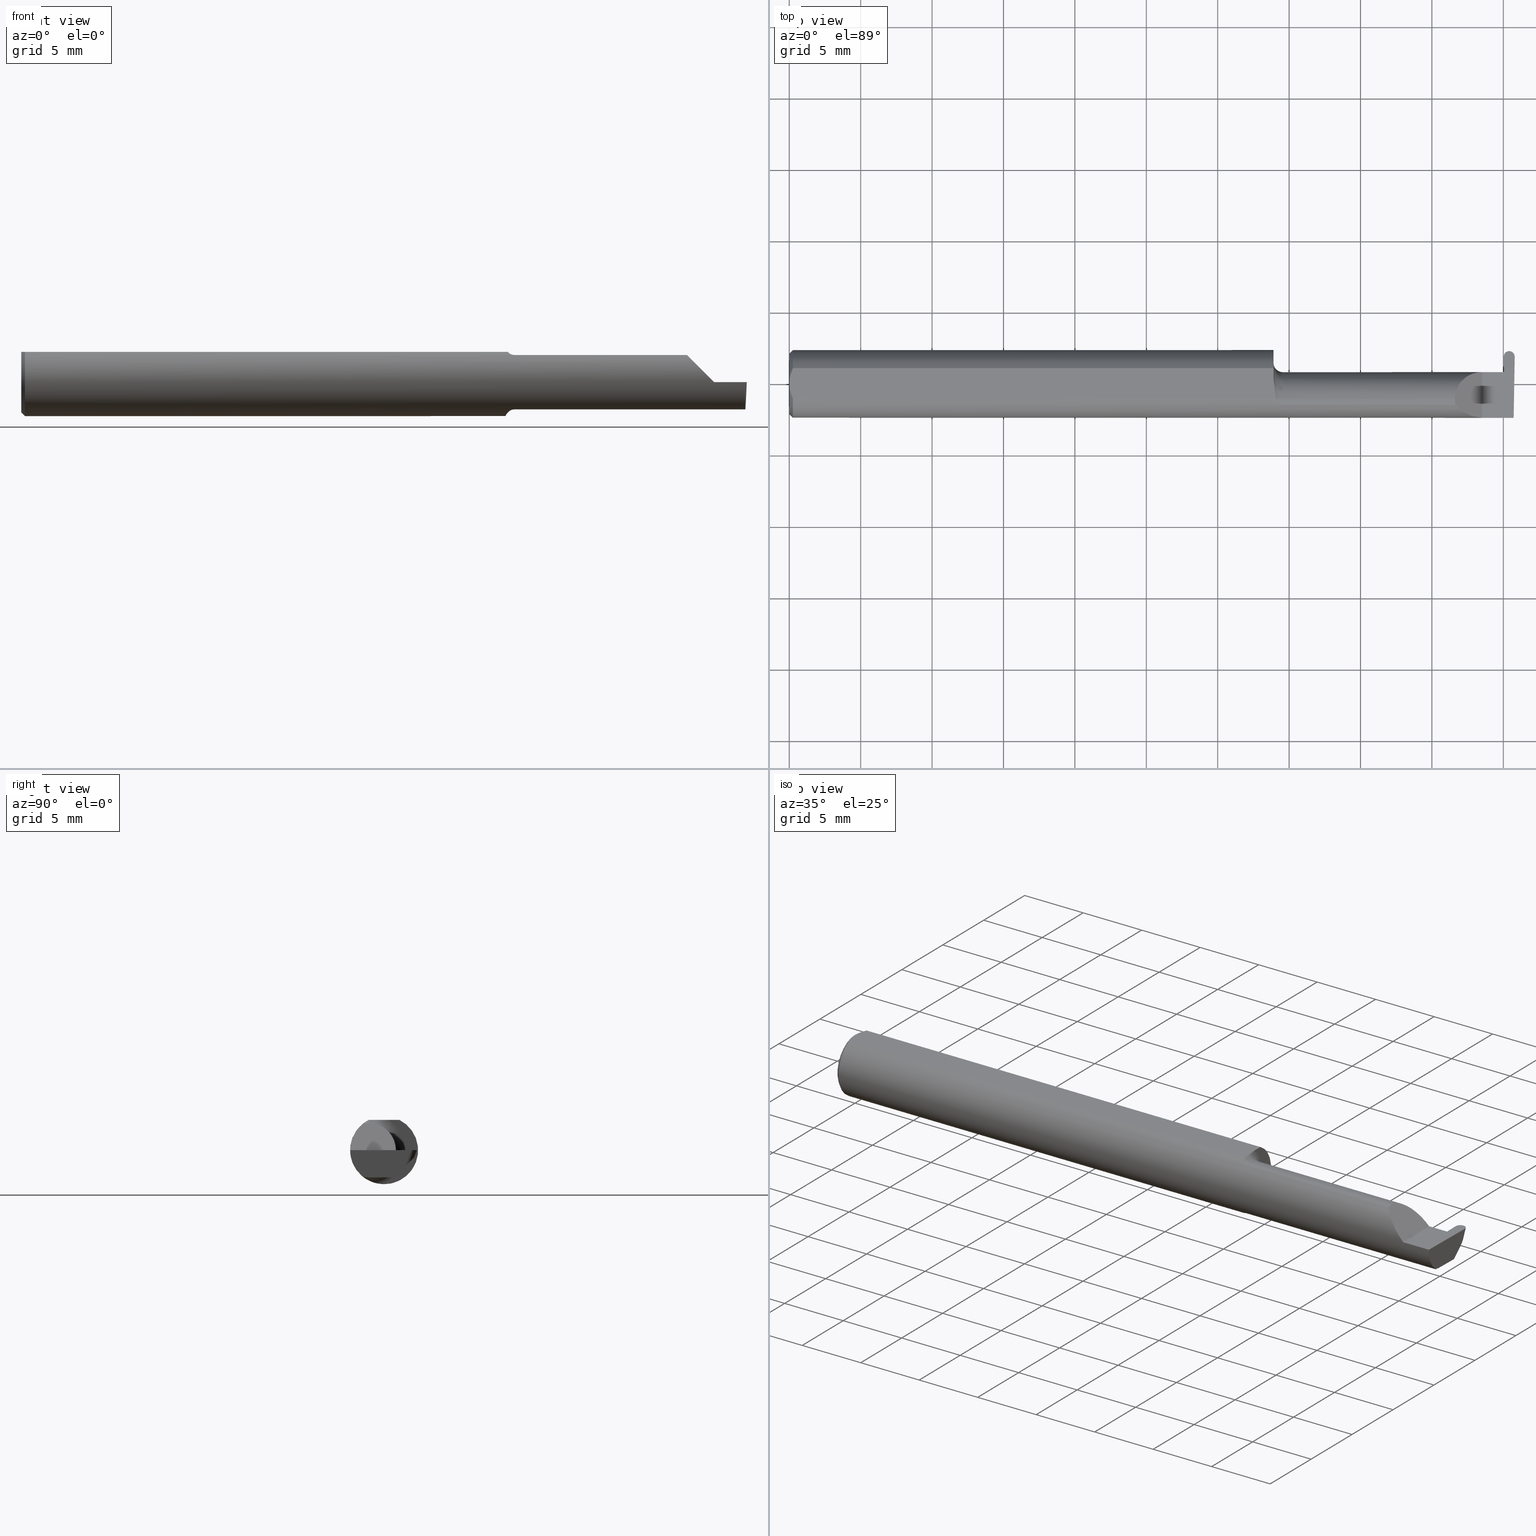
[diagram: canonical four-view strip — front | top / right | iso, engineering-drawing reading convention]
A machine part, canonical four-view strip (front | top / right | iso — engineering-drawing reading convention). The complete STEP part file that produces these views, byte-faithful:
ISO-10303-21;
HEADER;
FILE_DESCRIPTION (( 'STEP AP203' ),
    '1' );
FILE_NAME ('221825-GFR030K-10.STEP',
    '2024-06-17T19:36:38',
    ( '' ),
    ( '' ),
    'SwSTEP 2.0',
    'SolidWorks 2022',
    '' );
FILE_SCHEMA (( 'CONFIG_CONTROL_DESIGN' ));
ENDSEC;

DATA;
#1 = EDGE_CURVE ( 'NONE', #400, #269, #553, .T. ) ;
#2 = CARTESIAN_POINT ( 'NONE',  ( 1.351446782524423629, -0.05558685324519221926, -0.07531605361338924998 ) ) ;
#3 = DIRECTION ( 'NONE',  ( 0.000000000000000000, 0.000000000000000000, 1.000000000000000000 ) ) ;
#4 = DIRECTION ( 'NONE',  ( 0.000000000000000000, 0.000000000000000000, -1.000000000000000000 ) ) ;
#5 = EDGE_CURVE ( 'NONE', #344, #516, #43, .T. ) ;
#6 = CARTESIAN_POINT ( 'NONE',  ( 1.334999999999999742, 0.09360000000000005815, 0.08359999999999991049 ) ) ;
#7 = VECTOR ( 'NONE', #655, 39.37007874015748143 ) ;
#8 = CARTESIAN_POINT ( 'NONE',  ( 1.341129652885479251, -0.04209513035970115918, 0.08359999999999991049 ) ) ;
#9 = CARTESIAN_POINT ( 'NONE',  ( 1.351469028275930961, -0.05559939362423892834, 0.07530665289274073027 ) ) ;
#10 = EDGE_CURVE ( 'NONE', #59, #428, #534, .T. ) ;
#11 = CARTESIAN_POINT ( 'NONE',  ( 1.334999999999999742, -0.006757276995305315156, -0.09335576686851604356 ) ) ;
#12 = CARTESIAN_POINT ( 'NONE',  ( 1.357655343791670299, -0.05810704225352112534, 0.07337936794867830348 ) ) ;
#13 = VECTOR ( 'NONE', #454, 39.37007874015748143 ) ;
#14 = CARTESIAN_POINT ( 'NONE',  ( 1.836620632051321200, -0.05810704225352100044, 0.07337936794867835899 ) ) ;
#15 = CARTESIAN_POINT ( 'NONE',  ( 1.984733980000000120, 0.08346613280634004872, -0.01901843274260210312 ) ) ;
#16 = CARTESIAN_POINT ( 'NONE',  ( 1.334999999999999742, -0.04260000000000003367, 0.000000000000000000 ) ) ;
#17 = DIRECTION ( 'NONE',  ( 0.000000000000000000, 0.000000000000000000, 1.000000000000000000 ) ) ;
#18 = LOCAL_TIME ( 12, 36, 38.00000000000000000, #268 ) ;
#19 = CARTESIAN_POINT ( 'NONE',  ( 1.341356684838558522, -0.04260000000000006143, 0.08334386600104411180 ) ) ;
#20 = DIRECTION ( 'NONE',  ( 0.000000000000000000, 0.000000000000000000, 1.000000000000000000 ) ) ;
#21 = ORIENTED_EDGE ( 'NONE', *, *, #124, .T. ) ;
#22 = EDGE_CURVE ( 'NONE', #113, #229, #763, .T. ) ;
#23 = DIRECTION ( 'NONE',  ( -1.000000000000000000, -0.000000000000000000, -0.000000000000000000 ) ) ;
#24 =( NAMED_UNIT ( * ) SI_UNIT ( $, .STERADIAN. ) SOLID_ANGLE_UNIT ( ) );
#25 = EDGE_CURVE ( 'NONE', #802, #170, #506, .T. ) ;
#26 = CARTESIAN_POINT ( 'NONE',  ( 1.359999999999999654, -0.04260000000000002673, -0.07500000000000002498 ) ) ;
#27 = AXIS2_PLACEMENT_3D ( 'NONE', #419, #58, #3 ) ;
#28 = CARTESIAN_POINT ( 'NONE',  ( 1.910000000000000142, 0.03239999999999997743, 8.143901214329935029E-17 ) ) ;
#29 = APPROVAL_STATUS ( 'not_yet_approved' ) ;
#30 = VECTOR ( 'NONE', #656, 39.37007874015748143 ) ;
#31 = ADVANCED_FACE ( 'NONE', ( #405 ), #196, .T. ) ;
#32 = VERTEX_POINT ( 'NONE', #345 ) ;
#33 = CARTESIAN_POINT ( 'NONE',  ( 1.995346537079453419, -0.08092595952420826577, -0.05530971394246244482 ) ) ;
#34 = FACE_OUTER_BOUND ( 'NONE', #224, .T. ) ;
#35 = DATE_AND_TIME ( #650, #468 ) ;
#36 = CARTESIAN_POINT ( 'NONE',  ( 1.964077367699730736, 0.03227820251299121090, -0.003487823687206109430 ) ) ;
#37 = CARTESIAN_POINT ( 'NONE',  ( 1.334999999999999742, -0.04260000000000003367, 0.07500000000000002498 ) ) ;
#38 = CARTESIAN_POINT ( 'NONE',  ( 1.834999999999999298, 0.001333982822017827988, 0.07500000000000002498 ) ) ;
#39 = ORIENTED_EDGE ( 'NONE', *, *, #222, .T. ) ;
#40 = CARTESIAN_POINT ( 'NONE',  ( 1.998141998353699433, 0.05785528259492388886, -0.04462928295401853013 ) ) ;
#41 = EDGE_CURVE ( 'NONE', #269, #400, #783, .T. ) ;
#42 = APPROVAL ( #623, 'UNSPECIFIED' ) ;
#43 = LINE ( 'NONE', #464, #63 ) ;
#44 = CARTESIAN_POINT ( 'NONE',  ( 1.999984260029693539, 0.07409901316683065176, 0.000000000000000000 ) ) ;
#45 = ORIENTED_EDGE ( 'NONE', *, *, #640, .T. ) ;
#46 = ORIENTED_EDGE ( 'NONE', *, *, #86, .T. ) ;
#47 = VECTOR ( 'NONE', #733, 39.37007874015748143 ) ;
#48 = ORIENTED_EDGE ( 'NONE', *, *, #313, .F. ) ;
#49 = CARTESIAN_POINT ( 'NONE',  ( 1.836620632051321200, -0.05810704225352100044, 0.07337936794867835899 ) ) ;
#50 = ORIENTED_EDGE ( 'NONE', *, *, #539, .T. ) ;
#51 = ORIENTED_EDGE ( 'NONE', *, *, #88, .F. ) ;
#52 = ORIENTED_EDGE ( 'NONE', *, *, #222, .F. ) ;
#53 = LINE ( 'NONE', #465, #47 ) ;
#54 = CARTESIAN_POINT ( 'NONE',  ( 0.009999999999999877043, 0.04209513035969864037, 0.08359999999999988274 ) ) ;
#55 = EDGE_LOOP ( 'NONE', ( #297, #349, #308, #121 ) ) ;
#56 = ORIENTED_EDGE ( 'NONE', *, *, #435, .T. ) ;
#57 = DIRECTION ( 'NONE',  ( 0.000000000000000000, 0.000000000000000000, -1.000000000000000000 ) ) ;
#58 = DIRECTION ( 'NONE',  ( -0.000000000000000000, 1.000000000000000000, 1.224646799147353207E-16 ) ) ;
#59 = VERTEX_POINT ( 'NONE', #799 ) ;
#60 = EDGE_LOOP ( 'NONE', ( #68, #302, #181, #420 ) ) ;
#61 = PLANE ( 'NONE',  #272 ) ;
#62 = LINE ( 'NONE', #543, #504 ) ;
#63 = VECTOR ( 'NONE', #422, 39.37007874015748143 ) ;
#64 = ORIENTED_EDGE ( 'NONE', *, *, #762, .F. ) ;
#65 = B_SPLINE_CURVE_WITH_KNOTS ( 'NONE', 3,
 ( #508, #750, #253, #495, #9, #137, #12, #203 ),
 .UNSPECIFIED., .F., .F.,
 ( 4, 2, 2, 4 ),
 ( 1.584523690453658475E-05, 0.0003656721978374786498, 0.0005405856783039496858, 0.0007154991587704208301 ),
 .UNSPECIFIED. ) ;
#66 = DIRECTION ( 'NONE',  ( 0.000000000000000000, 0.000000000000000000, 1.000000000000000000 ) ) ;
#67 = DIRECTION ( 'NONE',  ( 1.000000000000000000, 0.000000000000000000, 0.000000000000000000 ) ) ;
#68 = ORIENTED_EDGE ( 'NONE', *, *, #230, .F. ) ;
#69 = DIRECTION ( 'NONE',  ( -0.001239419280281404273, 0.9999992319196288060, 0.000000000000000000 ) ) ;
#70 = CARTESIAN_POINT ( 'NONE',  ( 1.976063894922527542, 0.08291310012426171550, -0.01957146542468042941 ) ) ;
#71 = FACE_OUTER_BOUND ( 'NONE', #719, .T. ) ;
#72 = AXIS2_PLACEMENT_3D ( 'NONE', #594, #642, #388 ) ;
#73 = EDGE_CURVE ( 'NONE', #290, #727, #691, .T. ) ;
#74 = CARTESIAN_POINT ( 'NONE',  ( 1.984733980000000120, 0.08346613280634004872, -0.01901843274260210312 ) ) ;
#75 = CARTESIAN_POINT ( 'NONE',  ( 1.969483699970306922, 0.07409901316683065176, 0.000000000000000000 ) ) ;
#76 = DIRECTION ( 'NONE',  ( -1.000000000000000000, 0.000000000000000000, 1.224646799147358877E-16 ) ) ;
#77 = PRODUCT_RELATED_PRODUCT_CATEGORY ( 'detail', '', ( #603 ) ) ;
#78 = CARTESIAN_POINT ( 'NONE',  ( 0.000000000000000000, 0.000000000000000000, 0.000000000000000000 ) ) ;
#79 = DIRECTION ( 'NONE',  ( -1.000000000000000000, -0.000000000000000000, -0.000000000000000000 ) ) ;
#80 = PRODUCT_DEFINITION ( 'UNKNOWN', '', #801, #523 ) ;
#81 = CARTESIAN_POINT ( 'NONE',  ( 1.998141998353699433, 0.05785528259492388886, -0.04462928295401853013 ) ) ;
#82 = DIRECTION ( 'NONE',  ( 0.000000000000000000, 0.000000000000000000, -1.000000000000000000 ) ) ;
#83 = VECTOR ( 'NONE', #79, 39.37007874015748143 ) ;
#84 = CYLINDRICAL_SURFACE ( 'NONE', #785, 0.09360000000000001652 ) ;
#85 = ORGANIZATION ( 'UNSPECIFIED', 'UNSPECIFIED', '' ) ;
#86 = EDGE_CURVE ( 'NONE', #548, #541, #744, .T. ) ;
#87 = CARTESIAN_POINT ( 'NONE',  ( 1.995113740419715231, -0.05810704225352111146, -0.07337936794867830348 ) ) ;
#88 = EDGE_CURVE ( 'NONE', #423, #241, #635, .T. ) ;
#89 = DIRECTION ( 'NONE',  ( -0.02596452850600439177, 0.7068683906002057871, 0.7068683906002134476 ) ) ;
#90 = DATE_AND_TIME ( #598, #18 ) ;
#91 = AXIS2_PLACEMENT_3D ( 'NONE', #512, #524, #341 ) ;
#92 = VERTEX_POINT ( 'NONE', #695 ) ;
#93 = CARTESIAN_POINT ( 'NONE',  ( 1.995327814509989528, -0.04259999999999980469, -0.07500000000000002498 ) ) ;
#94 = CARTESIAN_POINT ( 'NONE',  ( 2.115884466375952400, -0.04259999999999980469, -0.07500000000000002498 ) ) ;
#95 = ADVANCED_FACE ( 'NONE', ( #258 ), #315, .F. ) ;
#96 = PERSON_AND_ORGANIZATION ( #243, #85 ) ;
#97 = CARTESIAN_POINT ( 'NONE',  ( 1.984733980000000120, 0.08346613280634004872, -0.01901843274260210312 ) ) ;
#98 = VECTOR ( 'NONE', #327, 39.37007874015748854 ) ;
#99 = CARTESIAN_POINT ( 'NONE',  ( 1.910000000000000142, 0.03239999999999997743, 8.143901214329935029E-17 ) ) ;
#100 = PERSON_AND_ORGANIZATION_ROLE ( 'design_owner' ) ;
#101 = ORIENTED_EDGE ( 'NONE', *, *, #22, .T. ) ;
#102 =( LENGTH_UNIT ( ) NAMED_UNIT ( * ) SI_UNIT ( $, .METRE. ) );
#103 = ORIENTED_EDGE ( 'NONE', *, *, #252, .T. ) ;
#104 = CARTESIAN_POINT ( 'NONE',  ( 0.000000000000000000, 0.000000000000000000, 0.000000000000000000 ) ) ;
#105 = CARTESIAN_POINT ( 'NONE',  ( 1.359999999999999654, -0.04260000000000002673, 0.000000000000000000 ) ) ;
#106 = CARTESIAN_POINT ( 'NONE',  ( 1.910000000000000142, -0.2500000000000000555, 1.102182119232621301E-17 ) ) ;
#107 = EDGE_LOOP ( 'NONE', ( #607, #242, #355, #676, #648, #348, #738 ) ) ;
#108 = PERSON_AND_ORGANIZATION ( #243, #85 ) ;
#109 = ORIENTED_EDGE ( 'NONE', *, *, #497, .F. ) ;
#110 = AXIS2_PLACEMENT_3D ( 'NONE', #440, #567, #4 ) ;
#111 = ORIENTED_EDGE ( 'NONE', *, *, #394, .T. ) ;
#112 = CARTESIAN_POINT ( 'NONE',  ( 1.359999999999999654, -0.04260000000000003367, 0.07500000000000002498 ) ) ;
#113 = VERTEX_POINT ( 'NONE', #11 ) ;
#114 = ORIENTED_EDGE ( 'NONE', *, *, #375, .F. ) ;
#115 = VECTOR ( 'NONE', #542, 39.37007874015748143 ) ;
#116 = EDGE_CURVE ( 'NONE', #727, #552, #493, .T. ) ;
#117 = VERTEX_POINT ( 'NONE', #697 ) ;
#118 = EDGE_CURVE ( 'NONE', #614, #285, #324, .T. ) ;
#119 = ORIENTED_EDGE ( 'NONE', *, *, #178, .F. ) ;
#120 = B_SPLINE_CURVE_WITH_KNOTS ( 'NONE', 3,
 ( #461, #36, #336, #271 ),
 .UNSPECIFIED., .F., .F.,
 ( 4, 4 ),
 ( 0.000000000000000000, 1.000000000000000000 ),
 .UNSPECIFIED. ) ;
#121 = ORIENTED_EDGE ( 'NONE', *, *, #687, .F. ) ;
#122 = CARTESIAN_POINT ( 'NONE',  ( -3.937007874047004035E-05, 0.02748456554894273055, -0.07500000000000002498 ) ) ;
#123 = EDGE_LOOP ( 'NONE', ( #228, #613, #787, #537, #343 ) ) ;
#124 = EDGE_CURVE ( 'NONE', #551, #117, #291, .T. ) ;
#125 = EDGE_LOOP ( 'NONE', ( #745, #414, #797, #192 ) ) ;
#126 = EDGE_LOOP ( 'NONE', ( #179, #395, #768, #544, #335, #796, #357, #114, #235 ) ) ;
#127 = DIRECTION ( 'NONE',  ( 1.000000000000000000, 0.000000000000000000, -0.000000000000000000 ) ) ;
#128 = DATE_AND_TIME ( #182, #339 ) ;
#129 = ORIENTED_EDGE ( 'NONE', *, *, #118, .F. ) ;
#130 = CARTESIAN_POINT ( 'NONE',  ( 1.343086474849918721, -0.04638796853538170589, -0.08140770120152260314 ) ) ;
#131 = CC_DESIGN_APPROVAL ( #42, ( #669 ) ) ;
#132 = CARTESIAN_POINT ( 'NONE',  ( 1.970211558952576159, 0.03239999999999999825, 0.000000000000000000 ) ) ;
#133 = ORIENTED_EDGE ( 'NONE', *, *, #694, .T. ) ;
#134 = CARTESIAN_POINT ( 'NONE',  ( 1.345264545693808600, -0.04993027844100256935, -0.07924826417278518775 ) ) ;
#135 = AXIS2_PLACEMENT_3D ( 'NONE', #16, #753, #138 ) ;
#136 = PLANE ( 'NONE',  #528 ) ;
#137 = CARTESIAN_POINT ( 'NONE',  ( 1.355389214148234434, -0.05750155061631028602, 0.07386444488392708563 ) ) ;
#138 = DIRECTION ( 'NONE',  ( 0.000000000000000000, 0.000000000000000000, 1.000000000000000000 ) ) ;
#139 = LINE ( 'NONE', #382, #98 ) ;
#140 = CONICAL_SURFACE ( 'NONE', #442, 0.08360000000000017417, 0.7853981633974466137 ) ;
#141 = DIRECTION ( 'NONE',  ( -1.224646799147358877E-16, 0.000000000000000000, -1.000000000000000000 ) ) ;
#142 = CC_DESIGN_SECURITY_CLASSIFICATION ( #669, ( #801 ) ) ;
#143 = DIRECTION ( 'NONE',  ( 0.03547001781079536092, 0.000000000000000000, -0.9993707409347653003 ) ) ;
#144 = B_SPLINE_CURVE_WITH_KNOTS ( 'NONE', 3,
 ( #378, #374, #148, #702 ),
 .UNSPECIFIED., .F., .F.,
 ( 4, 4 ),
 ( 0.0006429768761302129395, 0.001744210492668866585 ),
 .UNSPECIFIED. ) ;
#145 = PLANE ( 'NONE',  #110 ) ;
#146 = DIRECTION ( 'NONE',  ( 1.000000000000000000, 0.000000000000000000, 0.000000000000000000 ) ) ;
#147 = CARTESIAN_POINT ( 'NONE',  ( 1.984939206054983529, 0.09039999999999999425, 0.000000000000000000 ) ) ;
#148 = CARTESIAN_POINT ( 'NONE',  ( -2.417970307672167282E-16, -0.01462709520273677843, 0.08359999999999991049 ) ) ;
#149 = ADVANCED_FACE ( 'NONE', ( #251 ), #496, .F. ) ;
#150 = ADVANCED_FACE ( 'NONE', ( #684 ), #145, .T. ) ;
#151 = CARTESIAN_POINT ( 'NONE',  ( 1.995113740419715231, -0.05810704225352111146, -0.07337936794867830348 ) ) ;
#152 = CIRCLE ( 'NONE', #351, 0.07500000000000002498 ) ;
#153 = DIRECTION ( 'NONE',  ( 1.000000000000000000, -0.000000000000000000, -0.000000000000000000 ) ) ;
#154 = PERSON_AND_ORGANIZATION_ROLE ( 'classification_officer' ) ;
#155 = ORIENTED_EDGE ( 'NONE', *, *, #10, .F. ) ;
#156 = APPLICATION_CONTEXT ( 'configuration controlled 3d designs of mechanical parts and assemblies' ) ;
#157 = ADVANCED_FACE ( 'NONE', ( #756 ), #626, .F. ) ;
#158 = CARTESIAN_POINT ( 'NONE',  ( 1.995236768857725718, -0.04781600192481513800, -0.07500000000000002498 ) ) ;
#159 = ADVANCED_FACE ( 'NONE', ( #248 ), #136, .F. ) ;
#160 = CARTESIAN_POINT ( 'NONE',  ( 1.995327814509989528, -0.04259999999999980469, -0.07500000000000002498 ) ) ;
#161 = ORIENTED_EDGE ( 'NONE', *, *, #398, .T. ) ;
#162 = CARTESIAN_POINT ( 'NONE',  ( 1.972879577618598335, 0.02748456554894274442, -0.07499999999999999722 ) ) ;
#163 = LINE ( 'NONE', #106, #301 ) ;
#164 = AXIS2_PLACEMENT_3D ( 'NONE', #171, #784, #231 ) ;
#165 = DIRECTION ( 'NONE',  ( 0.000000000000000000, 0.000000000000000000, -1.000000000000000000 ) ) ;
#166 = DIRECTION ( 'NONE',  ( 0.000000000000000000, 0.000000000000000000, 1.000000000000000000 ) ) ;
#167 = LINE ( 'NONE', #459, #380 ) ;
#168 = ORIENTED_EDGE ( 'NONE', *, *, #230, .T. ) ;
#169 = SECURITY_CLASSIFICATION_LEVEL ( 'unclassified' ) ;
#170 = VERTEX_POINT ( 'NONE', #574 ) ;
#171 = CARTESIAN_POINT ( 'NONE',  ( 0.009999999999999877043, 0.000000000000000000, 0.000000000000000000 ) ) ;
#172 = LINE ( 'NONE', #37, #7 ) ;
#173 =( BOUNDED_CURVE ( )  B_SPLINE_CURVE ( 3, ( #44, #342, #287, #789 ),
 .UNSPECIFIED., .F., .T. ) 
 B_SPLINE_CURVE_WITH_KNOTS ( ( 4, 4 ),
 ( 1.672436806532648257, 3.247686724355375087 ),
 .UNSPECIFIED. ) 
 CURVE ( )  GEOMETRIC_REPRESENTATION_ITEM ( )  RATIONAL_B_SPLINE_CURVE ( ( 1.000000000000000000, 0.8036869647627065127, 0.8036869647627065127, 1.000000000000000000 ) ) 
 REPRESENTATION_ITEM ( '' )  );
#174 = EDGE_LOOP ( 'NONE', ( #52, #347, #485, #119, #482 ) ) ;
#175 = ADVANCED_FACE ( 'NONE', ( #260 ), #202, .T. ) ;
#176 = ORIENTED_EDGE ( 'NONE', *, *, #369, .F. ) ;
#177 = AXIS2_PLACEMENT_3D ( 'NONE', #433, #146, #447 ) ;
#178 = EDGE_CURVE ( 'NONE', #92, #290, #446, .T. ) ;
#179 = ORIENTED_EDGE ( 'NONE', *, *, #515, .F. ) ;
#180 = CARTESIAN_POINT ( 'NONE',  ( 1.835542168554753717, -0.05300374992736055918, 0.07445783144524575903 ) ) ;
#181 = ORIENTED_EDGE ( 'NONE', *, *, #322, .T. ) ;
#182 = CALENDAR_DATE ( 2024, 17, 6 ) ;
#183 = VECTOR ( 'NONE', #743, 39.37007874015748143 ) ;
#184 = ORIENTED_EDGE ( 'NONE', *, *, #317, .T. ) ;
#185 = AXIS2_PLACEMENT_3D ( 'NONE', #625, #66, #127 ) ;
#186 = EDGE_CURVE ( 'NONE', #538, #725, #765, .T. ) ;
#187 = DIRECTION ( 'NONE',  ( -1.000000000000000000, -0.000000000000000000, -0.000000000000000000 ) ) ;
#188 = ORIENTED_EDGE ( 'NONE', *, *, #539, .F. ) ;
#189 = ORIENTED_EDGE ( 'NONE', *, *, #394, .F. ) ;
#190 = DIRECTION ( 'NONE',  ( -1.000000000000000000, -0.000000000000000000, -0.000000000000000000 ) ) ;
#191 = CARTESIAN_POINT ( 'NONE',  ( 1.972966441847108454, -0.04260000000000003367, -0.07500000000000002498 ) ) ;
#192 = ORIENTED_EDGE ( 'NONE', *, *, #450, .F. ) ;
#193 = VERTEX_POINT ( 'NONE', #747 ) ;
#194 = CYLINDRICAL_SURFACE ( 'NONE', #387, 0.01524999999999999793 ) ;
#195 = ORIENTED_EDGE ( 'NONE', *, *, #354, .F. ) ;
#196 = CONICAL_SURFACE ( 'NONE', #641, 0.08360000000000017417, 0.7853981633974466137 ) ;
#197 = CARTESIAN_POINT ( 'NONE',  ( 1.981547166899399137, 0.1023591649057441905, 0.07744555263655339417 ) ) ;
#198 = APPROVAL_PERSON_ORGANIZATION ( #714, #701, #460 ) ;
#199 = DIRECTION ( 'NONE',  ( 1.000000000000000000, 0.000000000000000000, 0.000000000000000000 ) ) ;
#200 = CARTESIAN_POINT ( 'NONE',  ( 1.969470285088788852, 0.07486755121428030624, 0.000000000000000000 ) ) ;
#201 = CARTESIAN_POINT ( 'NONE',  ( 0.009999999999999877043, 0.04209513035969864037, 0.08359999999999988274 ) ) ;
#202 = CYLINDRICAL_SURFACE ( 'NONE', #135, 0.07500000000000002498 ) ;
#203 = CARTESIAN_POINT ( 'NONE',  ( 1.359999999999999654, -0.05810704225352111146, 0.07337936794867830348 ) ) ;
#204 = VECTOR ( 'NONE', #501, 39.37007874015748143 ) ;
#205 = DIRECTION ( 'NONE',  ( 0.03876062227022340073, -0.3417631236437465025, -0.9389864650134709390 ) ) ;
#206 = DIRECTION ( 'NONE',  ( 0.000000000000000000, 0.000000000000000000, -1.000000000000000000 ) ) ;
#207 = CLOSED_SHELL ( 'NONE', ( #427, #263, #584, #578, #667, #580, #755, #511, #95, #509, #31, #283, #175, #392, #150, #723, #149, #157, #159, #296, #659, #726, #457 ) ) ;
#208 = CARTESIAN_POINT ( 'NONE',  ( 1.334999999999999742, -0.04260000000000002673, -0.07500000000000002498 ) ) ;
#209 = FACE_OUTER_BOUND ( 'NONE', #352, .T. ) ;
#210 = CARTESIAN_POINT ( 'NONE',  ( 1.984733980000000120, 0.08688529186597597487, -0.009656581234204470940 ) ) ;
#211 = PERSON_AND_ORGANIZATION_ROLE ( 'design_supplier' ) ;
#212 = CARTESIAN_POINT ( 'NONE',  ( 1.970211558952576159, 0.03239999999999999825, 0.000000000000000000 ) ) ;
#213 = VECTOR ( 'NONE', #415, 39.37007874015748143 ) ;
#214 = CARTESIAN_POINT ( 'NONE',  ( 1.970211558952576159, 0.03239999999999999825, 0.000000000000000000 ) ) ;
#215 = CARTESIAN_POINT ( 'NONE',  ( 1.359999999999999654, -0.05810704225352108371, -0.07337936794867830348 ) ) ;
#216 = DATE_AND_TIME ( #333, #634 ) ;
#217 = LINE ( 'NONE', #264, #434 ) ;
#218 = DIRECTION ( 'NONE',  ( -0.000000000000000000, 1.000000000000000000, -0.000000000000000000 ) ) ;
#219 = DIRECTION ( 'NONE',  ( -1.000000000000000000, -0.000000000000000000, -0.000000000000000000 ) ) ;
#220 = ORIENTED_EDGE ( 'NONE', *, *, #612, .T. ) ;
#221 = AXIS2_PLACEMENT_3D ( 'NONE', #654, #190, #57 ) ;
#222 = EDGE_CURVE ( 'NONE', #552, #533, #236, .T. ) ;
#223 = ORIENTED_EDGE ( 'NONE', *, *, #687, .T. ) ;
#224 = EDGE_LOOP ( 'NONE', ( #805, #161, #786, #56 ) ) ;
#225 = AXIS2_PLACEMENT_3D ( 'NONE', #652, #703, #82 ) ;
#226 = EDGE_CURVE ( 'NONE', #193, #59, #438, .T. ) ;
#227 = CARTESIAN_POINT ( 'NONE',  ( 1.338953896433695556, -0.03733827064844359028, -0.08603332211978829969 ) ) ;
#228 = ORIENTED_EDGE ( 'NONE', *, *, #688, .F. ) ;
#229 = VERTEX_POINT ( 'NONE', #373 ) ;
#230 = EDGE_CURVE ( 'NONE', #725, #487, #385, .T. ) ;
#231 = DIRECTION ( 'NONE',  ( 0.000000000000000000, 0.000000000000000000, -1.000000000000000000 ) ) ;
#232 = CARTESIAN_POINT ( 'NONE',  ( 1.664733979999999613, -0.05810704225352111146, 0.07337936794867830348 ) ) ;
#233 = ORIENTED_EDGE ( 'NONE', *, *, #439, .T. ) ;
#234 = VECTOR ( 'NONE', #199, 39.37007874015748143 ) ;
#235 = ORIENTED_EDGE ( 'NONE', *, *, #432, .T. ) ;
#236 =( BOUNDED_CURVE ( )  B_SPLINE_CURVE ( 3, ( #629, #377, #70, #74 ),
 .UNSPECIFIED., .F., .T. ) 
 B_SPLINE_CURVE_WITH_KNOTS ( ( 4, 4 ),
 ( 4.726007796544804407, 6.263244654271833411 ),
 .UNSPECIFIED. ) 
 CURVE ( )  GEOMETRIC_REPRESENTATION_ITEM ( )  RATIONAL_B_SPLINE_CURVE ( ( 1.000000000000000000, 0.8125811630039301292, 0.8125811630039301292, 1.000000000000000000 ) ) 
 REPRESENTATION_ITEM ( '' )  );
#237 = APPROVAL_PERSON_ORGANIZATION ( #513, #445, #467 ) ;
#238 = DIRECTION ( 'NONE',  ( 0.000000000000000000, 0.000000000000000000, -1.000000000000000000 ) ) ;
#239 = LINE ( 'NONE', #232, #213 ) ;
#240 = CARTESIAN_POINT ( 'NONE',  ( 1.334999999999999742, -0.006757276995305315156, -0.09335576686851604356 ) ) ;
#241 = VERTEX_POINT ( 'NONE', #26 ) ;
#242 = ORIENTED_EDGE ( 'NONE', *, *, #615, .T. ) ;
#243 = PERSON ( 'UNSPECIFIED', 'UNSPECIFIED', 'UNSPECIFIED', ('UNSPECIFIED'), ('UNSPECIFIED'), ('UNSPECIFIED') ) ;
#244 = FACE_OUTER_BOUND ( 'NONE', #793, .T. ) ;
#245 = CARTESIAN_POINT ( 'NONE',  ( 1.334999999999999520, -0.01308640439514279288, -0.09289765197734374536 ) ) ;
#246 = VERTEX_POINT ( 'NONE', #147 ) ;
#247 = FACE_OUTER_BOUND ( 'NONE', #174, .T. ) ;
#248 = FACE_OUTER_BOUND ( 'NONE', #359, .T. ) ;
#249 = CIRCLE ( 'NONE', #72, 0.09999999999999996392 ) ;
#250 = PLANE ( 'NONE',  #185 ) ;
#251 = FACE_OUTER_BOUND ( 'NONE', #475, .T. ) ;
#252 = EDGE_CURVE ( 'NONE', #229, #627, #736, .T. ) ;
#253 = CARTESIAN_POINT ( 'NONE',  ( 1.345259025420519672, -0.04992838138009418614, 0.07925011723318654833 ) ) ;
#254 = EDGE_CURVE ( 'NONE', #246, #92, #217, .T. ) ;
#255 = DIRECTION ( 'NONE',  ( 0.03490480639812536257, 0.000000000000000000, -0.9993906415863165194 ) ) ;
#256 = FACE_OUTER_BOUND ( 'NONE', #123, .T. ) ;
#257 = EDGE_CURVE ( 'NONE', #541, #487, #458, .T. ) ;
#258 = FACE_OUTER_BOUND ( 'NONE', #126, .T. ) ;
#259 = CARTESIAN_POINT ( 'NONE',  ( 1.967284513080595598, 0.1350099130299695083, 0.03252534748102791501 ) ) ;
#260 = FACE_OUTER_BOUND ( 'NONE', #365, .T. ) ;
#261 = DIRECTION ( 'NONE',  ( -0.03876062227022336604, -0.3417631236437465581, -0.9389864650134709390 ) ) ;
#262 = AXIS2_PLACEMENT_3D ( 'NONE', #561, #383, #326 ) ;
#263 = ADVANCED_FACE ( 'NONE', ( #638 ), #710, .F. ) ;
#264 = CARTESIAN_POINT ( 'NONE',  ( 1.981957002351928621, 0.06410508538814198298, -0.07224468414256722537 ) ) ;
#265 = APPLICATION_PROTOCOL_DEFINITION ( 'international standard', 'config_control_design', 1994, #156 ) ;
#266 = CARTESIAN_POINT ( 'NONE',  ( 1.984733980000000120, 0.08517697538907439969, -0.01433940395293248522 ) ) ;
#267 = CARTESIAN_POINT ( 'NONE',  ( 1.971325961646301028, 0.05785528259492385417, -0.04462928295401856482 ) ) ;
#268 = COORDINATED_UNIVERSAL_TIME_OFFSET ( 8, 0, .BEHIND. ) ;
#269 = VERTEX_POINT ( 'NONE', #393 ) ;
#270 = AXIS2_PLACEMENT_3D ( 'NONE', #711, #604, #281 ) ;
#271 = CARTESIAN_POINT ( 'NONE',  ( 1.964199165186739648, 0.03239999999999999825, 0.000000000000000000 ) ) ;
#272 = AXIS2_PLACEMENT_3D ( 'NONE', #621, #521, #389 ) ;
#273 = CARTESIAN_POINT ( 'NONE',  ( 1.993404065077472032, 0.08291310012426146570, -0.01957146542468068268 ) ) ;
#274 = CARTESIAN_POINT ( 'NONE',  ( 1.996040470437265402, -0.09360000000000003040, -0.02910696448121679811 ) ) ;
#275 = CARTESIAN_POINT ( 'NONE',  ( 1.359999999999999654, -0.04260000000000003367, 0.000000000000000000 ) ) ;
#276 = ORIENTED_EDGE ( 'NONE', *, *, #608, .T. ) ;
#277 = ORIENTED_EDGE ( 'NONE', *, *, #186, .T. ) ;
#278 = EDGE_CURVE ( 'NONE', #92, #533, #376, .T. ) ;
#279 = EDGE_LOOP ( 'NONE', ( #451, #730, #478, #791, #466, #46, #740, #363 ) ) ;
#280 = FACE_OUTER_BOUND ( 'NONE', #391, .T. ) ;
#281 = DIRECTION ( 'NONE',  ( 0.000000000000000000, 0.000000000000000000, 1.000000000000000000 ) ) ;
#282 = VERTEX_POINT ( 'NONE', #402 ) ;
#283 = ADVANCED_FACE ( 'NONE', ( #646 ), #330, .F. ) ;
#284 = AXIS2_PLACEMENT_3D ( 'NONE', #483, #601, #238 ) ;
#285 = VERTEX_POINT ( 'NONE', #160 ) ;
#286 = B_SPLINE_CURVE_WITH_KNOTS ( 'NONE', 3,
 ( #790, #227, #800, #416, #245, #240 ),
 .UNSPECIFIED., .F., .F.,
 ( 4, 2, 4 ),
 ( 0.0007041963409106259328, 0.001193146413573846574, 0.001682096486237067215 ),
 .UNSPECIFIED. ) ;
#287 = CARTESIAN_POINT ( 'NONE',  ( 1.993910768437985759, 0.09039999999999999425, -1.125066701917155724E-18 ) ) ;
#288 = ORIENTED_EDGE ( 'NONE', *, *, #369, .T. ) ;
#289 = EDGE_CURVE ( 'NONE', #428, #241, #331, .T. ) ;
#290 = VERTEX_POINT ( 'NONE', #587 ) ;
#291 =( BOUNDED_CURVE ( )  B_SPLINE_CURVE ( 3, ( #502, #500, #569, #14 ),
 .UNSPECIFIED., .F., .F. ) 
 B_SPLINE_CURVE_WITH_KNOTS ( ( 4, 4 ),
 ( 4.712388980384689674, 5.613420356061720184 ),
 .UNSPECIFIED. ) 
 CURVE ( )  GEOMETRIC_REPRESENTATION_ITEM ( )  RATIONAL_B_SPLINE_CURVE ( ( 1.000000000000000000, 0.9334817841311873199, 0.9334817841311873199, 1.000000000000000000 ) ) 
 REPRESENTATION_ITEM ( '' )  );
#292 = DIRECTION ( 'NONE',  ( 0.000000000000000000, -1.000000000000000000, 0.000000000000000000 ) ) ;
#293 = LINE ( 'NONE', #122, #115 ) ;
#294 = ORIENTED_EDGE ( 'NONE', *, *, #435, .F. ) ;
#295 = APPROVAL_ROLE ( '' ) ;
#296 = ADVANCED_FACE ( 'NONE', ( #709 ), #769, .F. ) ;
#297 = ORIENTED_EDGE ( 'NONE', *, *, #407, .F. ) ;
#298 = ORIENTED_EDGE ( 'NONE', *, *, #116, .T. ) ;
#299 = CARTESIAN_POINT ( 'NONE',  ( 1.834999999999999520, -0.04260000000000003367, 0.07500000000000002498 ) ) ;
#300 = ORIENTED_EDGE ( 'NONE', *, *, #41, .T. ) ;
#301 = VECTOR ( 'NONE', #218, 39.37007874015748143 ) ;
#302 = ORIENTED_EDGE ( 'NONE', *, *, #371, .T. ) ;
#303 = CC_DESIGN_PERSON_AND_ORGANIZATION_ASSIGNMENT ( #720, #712, ( #801 ) ) ;
#304 = CC_DESIGN_APPROVAL ( #445, ( #80 ) ) ;
#305 = CARTESIAN_POINT ( 'NONE',  ( 1.334999999999999742, 0.01227294415283365983, 0.08359999999999991049 ) ) ;
#306 = AXIS2_PLACEMENT_3D ( 'NONE', #471, #292, #165 ) ;
#307 = FACE_OUTER_BOUND ( 'NONE', #125, .T. ) ;
#308 = ORIENTED_EDGE ( 'NONE', *, *, #762, .T. ) ;
#309 =( BOUNDED_CURVE ( )  B_SPLINE_CURVE ( 3, ( #525, #38, #583, #28 ),
 .UNSPECIFIED., .F., .F. ) 
 B_SPLINE_CURVE_WITH_KNOTS ( ( 4, 4 ),
 ( 0.000000000000000000, 1.570796326794896114 ),
 .UNSPECIFIED. ) 
 CURVE ( )  GEOMETRIC_REPRESENTATION_ITEM ( )  RATIONAL_B_SPLINE_CURVE ( ( 1.000000000000000000, 0.8047378541243650485, 0.8047378541243650485, 1.000000000000000000 ) ) 
 REPRESENTATION_ITEM ( '' )  );
#310 = CARTESIAN_POINT ( 'NONE',  ( 1.970211558952576159, 0.03239999999999999825, 0.000000000000000000 ) ) ;
#311 = CARTESIAN_POINT ( 'NONE',  ( 1.969473499029860131, 0.07418895767924950368, 0.0002471205168746668521 ) ) ;
#312 = EDGE_LOOP ( 'NONE', ( #421, #300 ) ) ;
#313 = EDGE_CURVE ( 'NONE', #344, #285, #323, .T. ) ;
#314 = CARTESIAN_POINT ( 'NONE',  ( 1.355389671955115727, -0.05750350940205785355, -0.07386306649500078148 ) ) ;
#315 = PLANE ( 'NONE',  #372 ) ;
#316 = DIRECTION ( 'NONE',  ( 0.000000000000000000, 0.000000000000000000, 1.000000000000000000 ) ) ;
#317 = EDGE_CURVE ( 'NONE', #282, #113, #249, .T. ) ;
#318 = LINE ( 'NONE', #759, #234 ) ;
#319 = VECTOR ( 'NONE', #69, 39.37007874015748854 ) ;
#320 = APPLICATION_CONTEXT ( 'configuration controlled 3d designs of mechanical parts and assemblies' ) ;
#321 = CARTESIAN_POINT ( 'NONE',  ( 1.341204482410373933, -0.04226411763296345631, 0.08351490979309542095 ) ) ;
#322 = EDGE_CURVE ( 'NONE', #611, #541, #120, .T. ) ;
#323 =( BOUNDED_CURVE ( )  B_SPLINE_CURVE ( 3, ( #151, #577, #158, #93 ),
 .UNSPECIFIED., .F., .F. ) 
 B_SPLINE_CURVE_WITH_KNOTS ( ( 4, 4 ),
 ( 0.2552020043920769088, 0.4634648172053365545 ),
 .UNSPECIFIED. ) 
 CURVE ( )  GEOMETRIC_REPRESENTATION_ITEM ( )  RATIONAL_B_SPLINE_CURVE ( ( 1.000000000000000000, 0.9963888149483994816, 0.9963888149483994816, 1.000000000000000000 ) ) 
 REPRESENTATION_ITEM ( '' )  );
#324 = LINE ( 'NONE', #689, #792 ) ;
#325 = DIRECTION ( 'NONE',  ( -1.000000000000000000, -0.000000000000000000, -0.000000000000000000 ) ) ;
#326 = DIRECTION ( 'NONE',  ( 0.000000000000000000, -0.7071067811865436870, -0.7071067811865513475 ) ) ;
#327 = DIRECTION ( 'NONE',  ( 0.03876062227022335910, 0.3417631236437465025, 0.9389864650134709390 ) ) ;
#328 = CARTESIAN_POINT ( 'NONE',  ( 1.999997674911211609, 0.07486755121428030624, 0.000000000000000000 ) ) ;
#329 = CARTESIAN_POINT ( 'NONE',  ( 0.000000000000000000, 0.000000000000000000, 0.000000000000000000 ) ) ;
#330 = PLANE ( 'NONE',  #225 ) ;
#331 = CIRCLE ( 'NONE', #91, 0.07500000000000002498 ) ;
#332 = CARTESIAN_POINT ( 'NONE',  ( 1.984733980000000120, 0.08346613280634004872, -0.01901843274260210312 ) ) ;
#333 = CALENDAR_DATE ( 2024, 17, 6 ) ;
#334 = VECTOR ( 'NONE', #205, 39.37007874015748854 ) ;
#335 = ORIENTED_EDGE ( 'NONE', *, *, #86, .F. ) ;
#336 = CARTESIAN_POINT ( 'NONE',  ( 1.964138266443235414, 0.03233910125649560457, -0.001743911843603054282 ) ) ;
#337 = FACE_OUTER_BOUND ( 'NONE', #279, .T. ) ;
#338 = UNCERTAINTY_MEASURE_WITH_UNIT (LENGTH_MEASURE( 1.000000000000000082E-05 ), #403, 'distance_accuracy_value', 'NONE');
#339 = LOCAL_TIME ( 12, 36, 38.00000000000000000, #729 ) ;
#340 = DIMENSIONAL_EXPONENTS ( 1.000000000000000000, 0.000000000000000000, 0.000000000000000000, 0.000000000000000000, 0.000000000000000000, 0.000000000000000000, 0.000000000000000000 ) ;
#341 = DIRECTION ( 'NONE',  ( 0.000000000000000000, 0.000000000000000000, 1.000000000000000000 ) ) ;
#342 = CARTESIAN_POINT ( 'NONE',  ( 2.000150782537319039, 0.08363908123938845751, -1.889248031255482572E-18 ) ) ;
#343 = ORIENTED_EDGE ( 'NONE', *, *, #432, .F. ) ;
#344 = VERTEX_POINT ( 'NONE', #774 ) ;
#345 = CARTESIAN_POINT ( 'NONE',  ( 1.341356684838558522, -0.04260000000000006143, -0.08334386600104411180 ) ) ;
#346 = CYLINDRICAL_SURFACE ( 'NONE', #270, 0.07500000000000002498 ) ;
#347 = ORIENTED_EDGE ( 'NONE', *, *, #116, .F. ) ;
#348 = ORIENTED_EDGE ( 'NONE', *, *, #10, .T. ) ;
#349 = ORIENTED_EDGE ( 'NONE', *, *, #1, .F. ) ;
#350 = CARTESIAN_POINT ( 'NONE',  ( 1.834999999999999520, -0.04260000000000003367, 0.07500000000000002498 ) ) ;
#351 = AXIS2_PLACEMENT_3D ( 'NONE', #275, #219, #316 ) ;
#352 = EDGE_LOOP ( 'NONE', ( #663, #616, #45, #21, #294, #356, #474, #532, #728, #223, #735, #409, #368, #645 ) ) ;
#353 = ORIENTED_EDGE ( 'NONE', *, *, #41, .F. ) ;
#354 = EDGE_CURVE ( 'NONE', #344, #417, #571, .T. ) ;
#355 = ORIENTED_EDGE ( 'NONE', *, *, #317, .F. ) ;
#356 = ORIENTED_EDGE ( 'NONE', *, *, #752, .F. ) ;
#357 = ORIENTED_EDGE ( 'NONE', *, *, #640, .F. ) ;
#358 = VECTOR ( 'NONE', #564, 39.37007874015748143 ) ;
#359 = EDGE_LOOP ( 'NONE', ( #276, #298, #657, #277, #168 ) ) ;
#360 = CARTESIAN_POINT ( 'NONE',  ( 1.997057062866469668, -0.09360000000000001652, 0.000000000000000000 ) ) ;
#361 = VERTEX_POINT ( 'NONE', #591 ) ;
#362 = VERTEX_POINT ( 'NONE', #162 ) ;
#363 = ORIENTED_EDGE ( 'NONE', *, *, #371, .F. ) ;
#364 = CARTESIAN_POINT ( 'NONE',  ( 1.996745115830019568, 0.03118762788560754812, -0.07129693766333515537 ) ) ;
#365 = EDGE_LOOP ( 'NONE', ( #51, #188, #48, #674, #176 ) ) ;
#366 = LINE ( 'NONE', #6, #494 ) ;
#367 = DIRECTION ( 'NONE',  ( -0.03549161113179509497, 0.03487750912278161919, 0.9987611851171729338 ) ) ;
#368 = ORIENTED_EDGE ( 'NONE', *, *, #615, .F. ) ;
#369 = EDGE_CURVE ( 'NONE', #241, #516, #152, .T. ) ;
#370 = LINE ( 'NONE', #746, #319 ) ;
#371 = EDGE_CURVE ( 'NONE', #725, #611, #535, .T. ) ;
#372 = AXIS2_PLACEMENT_3D ( 'NONE', #444, #141, #76 ) ;
#373 = CARTESIAN_POINT ( 'NONE',  ( 1.334999999999999742, 0.04209513035969864037, 0.08359999999999988274 ) ) ;
#374 = CARTESIAN_POINT ( 'NONE',  ( 0.004072204388638606815, -0.02891446873729326336, 0.08359999999999991049 ) ) ;
#375 = EDGE_CURVE ( 'NONE', #624, #417, #53, .T. ) ;
#376 =( BOUNDED_CURVE ( )  B_SPLINE_CURVE ( 3, ( #706, #210, #266, #97 ),
 .UNSPECIFIED., .F., .F. ) 
 B_SPLINE_CURVE_WITH_KNOTS ( ( 4, 4 ),
 ( 1.570796326794907438, 1.608809386890615922 ),
 .UNSPECIFIED. ) 
 CURVE ( )  GEOMETRIC_REPRESENTATION_ITEM ( )  RATIONAL_B_SPLINE_CURVE ( ( 1.000000000000000000, 0.9998795875634766128, 0.9998795875634766128, 1.000000000000000000 ) ) 
 REPRESENTATION_ITEM ( '' )  );
#377 = CARTESIAN_POINT ( 'NONE',  ( 1.970563718872776926, 0.07240713412461576015, -0.03007743142432650618 ) ) ;
#378 = CARTESIAN_POINT ( 'NONE',  ( 0.009999999999999877043, -0.04209513035969864037, 0.08359999999999988274 ) ) ;
#379 = AXIS2_PLACEMENT_3D ( 'NONE', #579, #261, #757 ) ;
#380 = VECTOR ( 'NONE', #89, 39.37007874015748143 ) ;
#381 = DIRECTION ( 'NONE',  ( -0.01745240643727633684, -0.9998476951563912696, 0.000000000000000000 ) ) ;
#382 = CARTESIAN_POINT ( 'NONE',  ( 1.999994460970140109, 0.07418895767924951756, 0.0002471205168746631116 ) ) ;
#383 = DIRECTION ( 'NONE',  ( 0.000000000000000000, -0.7071067811865513475, 0.7071067811865436870 ) ) ;
#384 = CARTESIAN_POINT ( 'NONE',  ( 2.115884466375952400, -0.04259999999999980469, -0.07500000000000002498 ) ) ;
#385 = LINE ( 'NONE', #212, #13 ) ;
#386 = LINE ( 'NONE', #259, #204 ) ;
#387 = AXIS2_PLACEMENT_3D ( 'NONE', #197, #488, #559 ) ;
#388 = DIRECTION ( 'NONE',  ( 0.000000000000000000, 0.000000000000000000, 1.000000000000000000 ) ) ;
#389 = DIRECTION ( 'NONE',  ( -0.7071067811865507924, 0.000000000000000000, 0.7071067811865441310 ) ) ;
#390 = COORDINATED_UNIVERSAL_TIME_OFFSET ( 8, 0, .BEHIND. ) ;
#391 = EDGE_LOOP ( 'NONE', ( #155, #557, #679 ) ) ;
#392 = ADVANCED_FACE ( 'NONE', ( #280 ), #632, .F. ) ;
#393 = CARTESIAN_POINT ( 'NONE',  ( 0.000000000000000000, 0.000000000000000000, -0.08360000000000017417 ) ) ;
#394 = EDGE_CURVE ( 'NONE', #362, #614, #293, .T. ) ;
#395 = ORIENTED_EDGE ( 'NONE', *, *, #73, .T. ) ;
#396 = DIRECTION ( 'NONE',  ( -0.03876062227022337298, -0.3417631236437465581, -0.9389864650134708279 ) ) ;
#397 = CYLINDRICAL_SURFACE ( 'NONE', #514, 0.07500000000000002498 ) ;
#398 = EDGE_CURVE ( 'NONE', #412, #428, #172, .T. ) ;
#399 =( BOUNDED_CURVE ( )  B_SPLINE_CURVE ( 3, ( #49, #180, #530, #350 ),
 .UNSPECIFIED., .F., .T. ) 
 B_SPLINE_CURVE_WITH_KNOTS ( ( 4, 4 ),
 ( 6.074922494366331804, 6.283185307179586232 ),
 .UNSPECIFIED. ) 
 CURVE ( )  GEOMETRIC_REPRESENTATION_ITEM ( )  RATIONAL_B_SPLINE_CURVE ( ( 1.000000000000000000, 0.9963888149483995926, 0.9963888149483995926, 1.000000000000000000 ) ) 
 REPRESENTATION_ITEM ( '' )  );
#400 = VERTEX_POINT ( 'NONE', #406 ) ;
#401 = AXIS2_PLACEMENT_3D ( 'NONE', #489, #507, #143 ) ;
#402 = CARTESIAN_POINT ( 'NONE',  ( 1.334999999999999742, 0.01227294415283365983, 0.08359999999999991049 ) ) ;
#403 =( CONVERSION_BASED_UNIT ( 'INCH', #592 ) LENGTH_UNIT ( ) NAMED_UNIT ( #340 ) );
#404 = AXIS2_PLACEMENT_3D ( 'NONE', #794, #677, #529 ) ;
#405 = FACE_OUTER_BOUND ( 'NONE', #55, .T. ) ;
#406 = CARTESIAN_POINT ( 'NONE',  ( 0.000000000000000000, 0.000000000000000000, 0.08359999999999991049 ) ) ;
#407 = EDGE_CURVE ( 'NONE', #269, #170, #737, .T. ) ;
#408 = CARTESIAN_POINT ( 'NONE',  ( 1.972792175482094290, 0.02986403519928995665, -0.07262053034965132436 ) ) ;
#409 = ORIENTED_EDGE ( 'NONE', *, *, #22, .F. ) ;
#410 = CALENDAR_DATE ( 2024, 17, 6 ) ;
#411 = CARTESIAN_POINT ( 'NONE',  ( 1.334999999999999742, 0.03221730376948593599, -0.005231735530821839987 ) ) ;
#412 = VERTEX_POINT ( 'NONE', #299 ) ;
#413 = ORIENTED_EDGE ( 'NONE', *, *, #694, .F. ) ;
#414 = ORIENTED_EDGE ( 'NONE', *, *, #186, .F. ) ;
#415 = DIRECTION ( 'NONE',  ( 1.000000000000000000, 0.000000000000000000, 0.000000000000000000 ) ) ;
#416 = CARTESIAN_POINT ( 'NONE',  ( 1.335436655799339345, -0.01945041057485646582, -0.09177104786119409663 ) ) ;
#417 = VERTEX_POINT ( 'NONE', #360 ) ;
#418 = ORIENTED_EDGE ( 'NONE', *, *, #124, .F. ) ;
#419 = CARTESIAN_POINT ( 'NONE',  ( 1.359999999999999654, -0.04260000000000001980, -0.09999999999999996392 ) ) ;
#420 = ORIENTED_EDGE ( 'NONE', *, *, #257, .T. ) ;
#421 = ORIENTED_EDGE ( 'NONE', *, *, #1, .T. ) ;
#422 = DIRECTION ( 'NONE',  ( -1.000000000000000000, -0.000000000000000000, -0.000000000000000000 ) ) ;
#423 = VERTEX_POINT ( 'NONE', #191 ) ;
#424 = EDGE_LOOP ( 'NONE', ( #50, #724, #111, #772 ) ) ;
#425 = CARTESIAN_POINT ( 'NONE',  ( 1.336463898467977085, -0.005727447913487201774, 0.08359999999999991049 ) ) ;
#426 = CARTESIAN_POINT ( 'NONE',  ( 1.969470285088788852, 0.07486755121428030624, 0.000000000000000000 ) ) ;
#427 = ADVANCED_FACE ( 'NONE', ( #662 ), #666, .F. ) ;
#428 = VERTEX_POINT ( 'NONE', #112 ) ;
#429 = EDGE_CURVE ( 'NONE', #117, #412, #399, .T. ) ;
#430 = CARTESIAN_POINT ( 'NONE',  ( 1.349728336617689317, -0.05428341532129036390, -0.07627162539867105018 ) ) ;
#431 = DIRECTION ( 'NONE',  ( 0.000000000000000000, -0.9396926207859083169, 0.3420201433256689905 ) ) ;
#432 = EDGE_CURVE ( 'NONE', #624, #246, #173, .T. ) ;
#433 = CARTESIAN_POINT ( 'NONE',  ( 0.009999999999999877043, 0.000000000000000000, 0.000000000000000000 ) ) ;
#434 = VECTOR ( 'NONE', #396, 39.37007874015748143 ) ;
#435 = EDGE_CURVE ( 'NONE', #361, #117, #239, .T. ) ;
#436 = CARTESIAN_POINT ( 'NONE',  ( -3.937007874047004035E-05, 0.09039999999999999425, 0.000000000000000000 ) ) ;
#437 = CARTESIAN_POINT ( 'NONE',  ( 0.004492168231814515009, 0.02859366993844193044, 0.08359999999999991049 ) ) ;
#438 = B_SPLINE_CURVE_WITH_KNOTS ( 'NONE', 3,
 ( #8, #321, #713, #19 ),
 .UNSPECIFIED., .F., .F.,
 ( 4, 4 ),
 ( 4.741820243535099003E-07, 1.584523690453658475E-05 ),
 .UNSPECIFIED. ) ;
#439 = EDGE_CURVE ( 'NONE', #193, #282, #760, .T. ) ;
#440 = CARTESIAN_POINT ( 'NONE',  ( 1.334999999999999742, 0.09359999999999990550, 0.000000000000000000 ) ) ;
#441 = CARTESIAN_POINT ( 'NONE',  ( -2.524841811771306987E-16, 0.007317304829308914245, 0.08359999999999991049 ) ) ;
#442 = AXIS2_PLACEMENT_3D ( 'NONE', #78, #570, #206 ) ;
#443 = LOCAL_TIME ( 12, 36, 38.00000000000000000, #779 ) ;
#444 = CARTESIAN_POINT ( 'NONE',  ( 2.000000000000000000, -0.2500000000000000555, 0.000000000000000000 ) ) ;
#445 = APPROVAL ( #708, 'UNSPECIFIED' ) ;
#446 = LINE ( 'NONE', #505, #358 ) ;
#447 = DIRECTION ( 'NONE',  ( 0.000000000000000000, 0.000000000000000000, -1.000000000000000000 ) ) ;
#448 = CARTESIAN_POINT ( 'NONE',  ( 1.359999999999999654, -0.04260000000000002673, 0.000000000000000000 ) ) ;
#449 = APPLICATION_PROTOCOL_DEFINITION ( 'international standard', 'config_control_design', 1994, #320 ) ;
#450 = EDGE_CURVE ( 'NONE', #423, #362, #370, .T. ) ;
#451 = ORIENTED_EDGE ( 'NONE', *, *, #718, .F. ) ;
#452 = AXIS2_PLACEMENT_3D ( 'NONE', #673, #716, #166 ) ;
#453 = EDGE_CURVE ( 'NONE', #715, #614, #680, .T. ) ;
#454 = DIRECTION ( 'NONE',  ( -0.03549161113179509497, 0.03487750912278161919, 0.9987611851171729338 ) ) ;
#455 = DIRECTION ( 'NONE',  ( 7.095197676277282976E-16, -0.9993908270190957621, 0.03489949670250104552 ) ) ;
#456 = DATE_AND_TIME ( #410, #443 ) ;
#457 = ADVANCED_FACE ( 'NONE', ( #247 ), #194, .T. ) ;
#458 = LINE ( 'NONE', #518, #473 ) ;
#459 = CARTESIAN_POINT ( 'NONE',  ( 1.969493928509964853, 0.1196567895122383346, 0.01717222396329658174 ) ) ;
#460 = APPROVAL_ROLE ( '' ) ;
#461 = CARTESIAN_POINT ( 'NONE',  ( 1.964016468956226502, 0.03221730376948682417, -0.005231735530809172169 ) ) ;
#462 = CARTESIAN_POINT ( 'NONE',  ( 1.910000000000000142, -0.09360000000000005815, 1.102182119232621301E-17 ) ) ;
#463 = PERSON_AND_ORGANIZATION_ROLE ( 'creator' ) ;
#464 = CARTESIAN_POINT ( 'NONE',  ( 1.664733979999999613, -0.05810704225352111146, -0.07337936794867830348 ) ) ;
#465 = CARTESIAN_POINT ( 'NONE',  ( 1.999997674911211609, 0.07486755121428030624, 0.000000000000000000 ) ) ;
#466 = ORIENTED_EDGE ( 'NONE', *, *, #576, .T. ) ;
#467 = APPROVAL_ROLE ( '' ) ;
#468 = LOCAL_TIME ( 12, 36, 38.00000000000000000, #390 ) ;
#469 = ORIENTED_EDGE ( 'NONE', *, *, #497, .T. ) ;
#470 = PRODUCT_DEFINITION_SHAPE ( 'NONE', 'NONE',  #80 ) ;
#471 = CARTESIAN_POINT ( 'NONE',  ( 1.359999999999999654, -0.04260000000000002673, 0.09999999999999996392 ) ) ;
#472 = DIRECTION ( 'NONE',  ( -1.000000000000000000, -0.000000000000000000, -0.000000000000000000 ) ) ;
#473 = VECTOR ( 'NONE', #510, 39.37007874015748143 ) ;
#474 = ORIENTED_EDGE ( 'NONE', *, *, #226, .F. ) ;
#475 = EDGE_LOOP ( 'NONE', ( #490, #545, #809 ) ) ;
#476 = CARTESIAN_POINT ( 'NONE',  ( 0.000000000000000000, 0.000000000000000000, -0.08360000000000017417 ) ) ;
#477 = ORIENTED_EDGE ( 'NONE', *, *, #576, .F. ) ;
#478 = ORIENTED_EDGE ( 'NONE', *, *, #289, .F. ) ;
#479 = AXIS2_PLACEMENT_3D ( 'NONE', #696, #566, #17 ) ;
#480 = EDGE_LOOP ( 'NONE', ( #101, #109, #184 ) ) ;
#481 = MANIFOLD_SOLID_BREP ( 'Radii', #207 ) ;
#482 = ORIENTED_EDGE ( 'NONE', *, *, #278, .T. ) ;
#483 = CARTESIAN_POINT ( 'NONE',  ( 0.000000000000000000, 0.000000000000000000, 0.000000000000000000 ) ) ;
#484 = CARTESIAN_POINT ( 'NONE',  ( 1.341129652885479251, -0.04209513035970115918, 0.08359999999999991049 ) ) ;
#485 = ORIENTED_EDGE ( 'NONE', *, *, #73, .F. ) ;
#486 = CARTESIAN_POINT ( 'NONE',  ( 1.975557191562014481, 0.09039999999999995262, 1.819911666231880180E-17 ) ) ;
#487 = VERTEX_POINT ( 'NONE', #310 ) ;
#488 = DIRECTION ( 'NONE',  ( -0.03876062227022340767, 0.3417631236437465581, 0.9389864650134709390 ) ) ;
#489 = CARTESIAN_POINT ( 'NONE',  ( 1.973502455199203531, -1.941492535493466676, -0.02379143284442357051 ) ) ;
#490 = ORIENTED_EDGE ( 'NONE', *, *, #254, .T. ) ;
#491 = EDGE_CURVE ( 'NONE', #516, #32, #692, .T. ) ;
#492 = CARTESIAN_POINT ( 'NONE',  ( 1.357653034764491284, -0.05810704225352110452, -0.07337936794867828960 ) ) ;
#493 = LINE ( 'NONE', #311, #334 ) ;
#494 = VECTOR ( 'NONE', #628, 39.37007874015748143 ) ;
#495 = CARTESIAN_POINT ( 'NONE',  ( 1.349746577633804012, -0.05429945193459807806, 0.07626038032150804502 ) ) ;
#496 = PLANE ( 'NONE',  #572 ) ;
#497 = EDGE_CURVE ( 'NONE', #282, #229, #366, .T. ) ;
#498 = CARTESIAN_POINT ( 'NONE',  ( 0.000000000000000000, 0.000000000000000000, 0.08359999999999991049 ) ) ;
#499 =( BOUNDED_CURVE ( )  B_SPLINE_CURVE ( 3, ( #503, #639, #686, #698 ),
 .UNSPECIFIED., .F., .T. ) 
 B_SPLINE_CURVE_WITH_KNOTS ( ( 4, 4 ),
 ( 3.176499238629679756, 4.677482395344799926 ),
 .UNSPECIFIED. ) 
 CURVE ( )  GEOMETRIC_REPRESENTATION_ITEM ( )  RATIONAL_B_SPLINE_CURVE ( ( 1.000000000000000000, 0.8209024677461143060, 0.8209024677461143060, 1.000000000000000000 ) ) 
 REPRESENTATION_ITEM ( '' )  );
#500 = CARTESIAN_POINT ( 'NONE',  ( 1.880893035518782730, -0.09359999999999997489, 0.02910696448121682239 ) ) ;
#501 = DIRECTION ( 'NONE',  ( -0.03701368837992446981, 0.7066222423871552083, 0.7066222423871628688 ) ) ;
#502 = CARTESIAN_POINT ( 'NONE',  ( 1.910000000000000142, -0.09360000000000005815, 1.102182119232621301E-17 ) ) ;
#503 = CARTESIAN_POINT ( 'NONE',  ( 1.972966441847108454, -0.04260000000000003367, -0.07500000000000002498 ) ) ;
#504 = VECTOR ( 'NONE', #795, 39.37007874015748143 ) ;
#505 = CARTESIAN_POINT ( 'NONE',  ( 1.981547166899399359, 0.1166894773727293194, 0.07222974545083694908 ) ) ;
#506 = CIRCLE ( 'NONE', #164, 0.09360000000000001652 ) ;
#507 = DIRECTION ( 'NONE',  ( 0.9993699743034455407, 0.001238639365660605890, 0.03546999060124694098 ) ) ;
#508 = CARTESIAN_POINT ( 'NONE',  ( 1.341356684838558522, -0.04260000000000006143, 0.08334386600104411180 ) ) ;
#509 = ADVANCED_FACE ( 'NONE', ( #742 ), #250, .T. ) ;
#510 = DIRECTION ( 'NONE',  ( 1.000000000000000000, 7.099522513569870101E-16, -0.000000000000000000 ) ) ;
#511 = ADVANCED_FACE ( 'NONE', ( #244 ), #61, .F. ) ;
#512 = CARTESIAN_POINT ( 'NONE',  ( 1.359999999999999654, -0.04260000000000003367, 0.000000000000000000 ) ) ;
#513 = PERSON_AND_ORGANIZATION ( #243, #85 ) ;
#514 = AXIS2_PLACEMENT_3D ( 'NONE', #649, #187, #807 ) ;
#515 = EDGE_CURVE ( 'NONE', #290, #246, #717, .T. ) ;
#516 = VERTEX_POINT ( 'NONE', #215 ) ;
#517 = VECTOR ( 'NONE', #618, 39.37007874015748143 ) ;
#518 = CARTESIAN_POINT ( 'NONE',  ( 1.970211558952576159, 0.03239999999999999825, 0.000000000000000000 ) ) ;
#519 = AXIS2_PLACEMENT_3D ( 'NONE', #776, #522, #647 ) ;
#520 = DIRECTION ( 'NONE',  ( 0.03490480639812536257, 0.000000000000000000, 0.9993906415863165194 ) ) ;
#521 = DIRECTION ( 'NONE',  ( -0.7071067811865442421, 0.000000000000000000, -0.7071067811865509034 ) ) ;
#522 = DIRECTION ( 'NONE',  ( 0.000000000000000000, 0.000000000000000000, 1.000000000000000000 ) ) ;
#523 = DESIGN_CONTEXT ( 'detailed design', #320, 'design' ) ;
#524 = DIRECTION ( 'NONE',  ( -1.000000000000000000, -0.000000000000000000, -0.000000000000000000 ) ) ;
#525 = CARTESIAN_POINT ( 'NONE',  ( 1.834999999999999520, -0.04260000000000003367, 0.07500000000000002498 ) ) ;
#526 = ORIENTED_EDGE ( 'NONE', *, *, #773, .T. ) ;
#527 = MECHANICAL_CONTEXT ( 'NONE', #156, 'mechanical' ) ;
#528 = AXIS2_PLACEMENT_3D ( 'NONE', #200, #631, #255 ) ;
#529 = DIRECTION ( 'NONE',  ( 0.000000000000000000, 0.000000000000000000, -1.000000000000000000 ) ) ;
#530 = CARTESIAN_POINT ( 'NONE',  ( 1.834999999999999520, -0.04781600192481529760, 0.07500000000000003886 ) ) ;
#531 = PLANE ( 'NONE',  #798 ) ;
#532 = ORIENTED_EDGE ( 'NONE', *, *, #661, .F. ) ;
#533 = VERTEX_POINT ( 'NONE', #332 ) ;
#534 = CIRCLE ( 'NONE', #306, 0.02499999999999993894 ) ;
#535 = LINE ( 'NONE', #411, #517 ) ;
#536 = EDGE_CURVE ( 'NONE', #362, #538, #167, .T. ) ;
#537 = ORIENTED_EDGE ( 'NONE', *, *, #254, .F. ) ;
#538 = VERTEX_POINT ( 'NONE', #408 ) ;
#539 = EDGE_CURVE ( 'NONE', #285, #423, #778, .T. ) ;
#540 = ADVANCED_BREP_SHAPE_REPRESENTATION ( '221825-GFR030K-10', ( #481, #519 ), #751 ) ;
#541 = VERTEX_POINT ( 'NONE', #596 ) ;
#542 = DIRECTION ( 'NONE',  ( 1.000000000000000000, -0.000000000000000000, -0.000000000000000000 ) ) ;
#543 = CARTESIAN_POINT ( 'NONE',  ( 2.999519565323742037E-32, -0.09359999999999998876, 2.449293598294716768E-16 ) ) ;
#544 = ORIENTED_EDGE ( 'NONE', *, *, #257, .F. ) ;
#545 = ORIENTED_EDGE ( 'NONE', *, *, #178, .T. ) ;
#546 = EDGE_CURVE ( 'NONE', #551, #548, #163, .T. ) ;
#547 = AXIS2_PLACEMENT_3D ( 'NONE', #384, #633, #630 ) ;
#548 = VERTEX_POINT ( 'NONE', #99 ) ;
#549 = DIRECTION ( 'NONE',  ( 0.000000000000000000, 0.000000000000000000, 1.000000000000000000 ) ) ;
#550 = CARTESIAN_POINT ( 'NONE',  ( 1.996551145152111628, 0.02748456554894272708, -0.07500000000000002498 ) ) ;
#551 = VERTEX_POINT ( 'NONE', #462 ) ;
#552 = VERTEX_POINT ( 'NONE', #267 ) ;
#553 = CIRCLE ( 'NONE', #221, 0.08360000000000017417 ) ;
#554 = CARTESIAN_POINT ( 'NONE',  ( 1.359999999999999654, -0.05810704225352108371, -0.07337936794867830348 ) ) ;
#555 = PLANE ( 'NONE',  #401 ) ;
#556 = CARTESIAN_POINT ( 'NONE',  ( 1.984528753945016710, 0.09039999999999999425, 0.000000000000000000 ) ) ;
#557 = ORIENTED_EDGE ( 'NONE', *, *, #752, .T. ) ;
#558 = CC_DESIGN_PERSON_AND_ORGANIZATION_ASSIGNMENT ( #658, #154, ( #669 ) ) ;
#559 = DIRECTION ( 'NONE',  ( 0.000000000000000000, -0.9396926207859083169, 0.3420201433256689350 ) ) ;
#560 = LINE ( 'NONE', #426, #183 ) ;
#561 = CARTESIAN_POINT ( 'NONE',  ( -3.937007874047004035E-05, 0.08348456554894213844, -0.01899999999999999953 ) ) ;
#562 = ORIENTED_EDGE ( 'NONE', *, *, #453, .T. ) ;
#563 = CARTESIAN_POINT ( 'NONE',  ( 1.341356684838558522, -0.04260000000000006143, -0.08334386600104411180 ) ) ;
#564 = DIRECTION ( 'NONE',  ( -0.03876062227022340767, 0.3417631236437465581, 0.9389864650134708279 ) ) ;
#565 = AXIS2_PLACEMENT_3D ( 'NONE', #328, #780, #520 ) ;
#566 = DIRECTION ( 'NONE',  ( -1.000000000000000000, -0.000000000000000000, -0.000000000000000000 ) ) ;
#567 = DIRECTION ( 'NONE',  ( 1.000000000000000000, 0.000000000000000000, 0.000000000000000000 ) ) ;
#568 = CARTESIAN_POINT ( 'NONE',  ( 0.009999999999999877043, -0.04209513035969864037, 0.08359999999999988274 ) ) ;
#569 = CARTESIAN_POINT ( 'NONE',  ( 1.854690286057536941, -0.08092595952420821026, 0.05530971394246249340 ) ) ;
#570 = DIRECTION ( 'NONE',  ( 1.000000000000000000, 0.000000000000000000, 0.000000000000000000 ) ) ;
#571 =( BOUNDED_CURVE ( )  B_SPLINE_CURVE ( 3, ( #87, #33, #274, #777 ),
 .UNSPECIFIED., .F., .T. ) 
 B_SPLINE_CURVE_WITH_KNOTS ( ( 4, 4 ),
 ( 0.2063001339125341005, 1.107331509589563945 ),
 .UNSPECIFIED. ) 
 CURVE ( )  GEOMETRIC_REPRESENTATION_ITEM ( )  RATIONAL_B_SPLINE_CURVE ( ( 1.000000000000000000, 0.9334817841311873199, 0.9334817841311873199, 1.000000000000000000 ) ) 
 REPRESENTATION_ITEM ( '' )  );
#572 = AXIS2_PLACEMENT_3D ( 'NONE', #436, #431, #758 ) ;
#573 = B_SPLINE_CURVE_WITH_KNOTS ( 'NONE', 3,
 ( #498, #441, #636, #437, #754, #201 ),
 .UNSPECIFIED., .F., .F.,
 ( 4, 2, 4 ),
 ( 0.001744210492668866585, 0.002295110172257195866, 0.002846009851845525147 ),
 .UNSPECIFIED. ) ;
#574 = CARTESIAN_POINT ( 'NONE',  ( 0.009999999999999877043, 0.000000000000000000, -0.09360000000000001652 ) ) ;
#575 = FACE_OUTER_BOUND ( 'NONE', #424, .T. ) ;
#576 = EDGE_CURVE ( 'NONE', #412, #548, #309, .T. ) ;
#577 = CARTESIAN_POINT ( 'NONE',  ( 1.995165152206654691, -0.05300374992736052449, -0.07445783144524574515 ) ) ;
#578 = ADVANCED_FACE ( 'NONE', ( #34 ), #346, .T. ) ;
#579 = CARTESIAN_POINT ( 'NONE',  ( 1.981957002351928399, 0.04977477292115689567, -0.06702887695685075253 ) ) ;
#580 = ADVANCED_FACE ( 'NONE', ( #643 ), #531, .F. ) ;
#581 = AXIS2_PLACEMENT_3D ( 'NONE', #448, #700, #767 ) ;
#582 = CARTESIAN_POINT ( 'NONE',  ( 0.000000000000000000, 0.04209513035969864037, 0.08359999999999988274 ) ) ;
#583 = CARTESIAN_POINT ( 'NONE',  ( 1.866066017177981706, 0.03239999999999996355, 0.04393398282201791544 ) ) ;
#584 = ADVANCED_FACE ( 'NONE', ( #337 ), #397, .T. ) ;
#585 = DATE_TIME_ROLE ( 'creation_date' ) ;
#586 = EDGE_LOOP ( 'NONE', ( #617, #597, #721, #195, #804, #129 ) ) ;
#587 = CARTESIAN_POINT ( 'NONE',  ( 1.984528753945016710, 0.09039999999999999425, 0.000000000000000000 ) ) ;
#588 = PERSON_AND_ORGANIZATION ( #243, #85 ) ;
#589 = CIRCLE ( 'NONE', #27, 0.02499999999999993894 ) ;
#590 =( BOUNDED_CURVE ( )  B_SPLINE_CURVE ( 3, ( #15, #273, #644, #40 ),
 .UNSPECIFIED., .F., .T. ) 
 B_SPLINE_CURVE_WITH_KNOTS ( ( 4, 4 ),
 ( 3.161533306497564144, 4.698770164224574053 ),
 .UNSPECIFIED. ) 
 CURVE ( )  GEOMETRIC_REPRESENTATION_ITEM ( )  RATIONAL_B_SPLINE_CURVE ( ( 1.000000000000000000, 0.8125811630039345701, 0.8125811630039345701, 1.000000000000000000 ) ) 
 REPRESENTATION_ITEM ( '' )  );
#591 = CARTESIAN_POINT ( 'NONE',  ( 1.359999999999999654, -0.05810704225352111146, 0.07337936794867830348 ) ) ;
#592 = LENGTH_MEASURE_WITH_UNIT ( LENGTH_MEASURE( 0.02539999999999999897 ), #102 );
#593 = CC_DESIGN_DATE_AND_TIME_ASSIGNMENT ( #35, #678, ( #669 ) ) ;
#594 = CARTESIAN_POINT ( 'NONE',  ( 1.334999999999999742, -0.04260000000000003367, 0.000000000000000000 ) ) ;
#595 = CARTESIAN_POINT ( 'NONE',  ( 1.339570820222979908, -0.02392027542784314065, 0.08359999999999992437 ) ) ;
#596 = CARTESIAN_POINT ( 'NONE',  ( 1.964199165186739648, 0.03239999999999999825, 0.000000000000000000 ) ) ;
#597 = ORIENTED_EDGE ( 'NONE', *, *, #688, .T. ) ;
#598 = CALENDAR_DATE ( 2024, 17, 6 ) ;
#599 = CC_DESIGN_DATE_AND_TIME_ASSIGNMENT ( #216, #585, ( #80 ) ) ;
#600 = ORIENTED_EDGE ( 'NONE', *, *, #536, .T. ) ;
#601 = DIRECTION ( 'NONE',  ( -1.000000000000000000, -0.000000000000000000, -0.000000000000000000 ) ) ;
#602 = DIRECTION ( 'NONE',  ( 0.7071067811865486830, 0.000000000000000000, -0.7071067811865462405 ) ) ;
#603 = PRODUCT ( '221825-GFR030K-10', '221825-GFR030K-10', '', ( #527 ) ) ;
#604 = DIRECTION ( 'NONE',  ( -1.000000000000000000, -0.000000000000000000, -0.000000000000000000 ) ) ;
#605 = ORIENTED_EDGE ( 'NONE', *, *, #699, .T. ) ;
#606 =( NAMED_UNIT ( * ) PLANE_ANGLE_UNIT ( ) SI_UNIT ( $, .RADIAN. ) );
#607 = ORIENTED_EDGE ( 'NONE', *, *, #612, .F. ) ;
#608 = EDGE_CURVE ( 'NONE', #487, #727, #560, .T. ) ;
#609 = VECTOR ( 'NONE', #602, 39.37007874015748854 ) ;
#610 = CARTESIAN_POINT ( 'NONE',  ( 1.964016468956226502, 0.03221730376948682417, -0.005231735530809172169 ) ) ;
#611 = VERTEX_POINT ( 'NONE', #610 ) ;
#612 = EDGE_CURVE ( 'NONE', #32, #241, #589, .T. ) ;
#613 = ORIENTED_EDGE ( 'NONE', *, *, #773, .F. ) ;
#614 = VERTEX_POINT ( 'NONE', #550 ) ;
#615 = EDGE_CURVE ( 'NONE', #32, #113, #286, .T. ) ;
#616 = ORIENTED_EDGE ( 'NONE', *, *, #354, .T. ) ;
#617 = ORIENTED_EDGE ( 'NONE', *, *, #453, .F. ) ;
#618 = DIRECTION ( 'NONE',  ( -1.000000000000000000, -0.000000000000000000, -0.000000000000000000 ) ) ;
#619 = EDGE_LOOP ( 'NONE', ( #605, #39, #526, #562, #189, #600 ) ) ;
#620 = ORIENTED_EDGE ( 'NONE', *, *, #491, .T. ) ;
#621 = CARTESIAN_POINT ( 'NONE',  ( 1.910000000000000142, -0.2500000000000000555, 1.102182119232621301E-17 ) ) ;
#622 = CARTESIAN_POINT ( 'NONE',  ( 1.999984260029693539, 0.07409901316683065176, 0.000000000000000000 ) ) ;
#623 = APPROVAL_STATUS ( 'not_yet_approved' ) ;
#624 = VERTEX_POINT ( 'NONE', #622 ) ;
#625 = CARTESIAN_POINT ( 'NONE',  ( 2.191425808082400728, 0.09360000000000005815, 0.08359999999999991049 ) ) ;
#626 = PLANE ( 'NONE',  #262 ) ;
#627 = VERTEX_POINT ( 'NONE', #54 ) ;
#628 = DIRECTION ( 'NONE',  ( 0.000000000000000000, 1.000000000000000000, 0.000000000000000000 ) ) ;
#629 = CARTESIAN_POINT ( 'NONE',  ( 1.971325961646301028, 0.05785528259492385417, -0.04462928295401856482 ) ) ;
#630 = DIRECTION ( 'NONE',  ( 1.000000000000000000, 0.000000000000000000, -0.000000000000000000 ) ) ;
#631 = DIRECTION ( 'NONE',  ( 0.9992386149554827179, 0.01744177490282312198, 0.03489949670250104552 ) ) ;
#632 = TOROIDAL_SURFACE ( 'NONE', #452, 0.09999999999999996392, 0.02499999999999994241 ) ;
#633 = DIRECTION ( 'NONE',  ( 0.000000000000000000, 0.000000000000000000, 1.000000000000000000 ) ) ;
#634 = LOCAL_TIME ( 12, 36, 38.00000000000000000, #782 ) ;
#635 = LINE ( 'NONE', #208, #83 ) ;
#636 = CARTESIAN_POINT ( 'NONE',  ( 0.0009807498324115706059, 0.01453516766257749622, 0.08359999999999992437 ) ) ;
#637 = CARTESIAN_POINT ( 'NONE',  ( 1.970397471987413995, 0.03221730376948542252, -0.005231735530809524318 ) ) ;
#638 = FACE_OUTER_BOUND ( 'NONE', #107, .T. ) ;
#639 = CARTESIAN_POINT ( 'NONE',  ( 1.972914956890062355, -0.001060451341131634457, -0.07500000000000001110 ) ) ;
#640 = EDGE_CURVE ( 'NONE', #417, #551, #62, .T. ) ;
#641 = AXIS2_PLACEMENT_3D ( 'NONE', #104, #722, #732 ) ;
#642 = DIRECTION ( 'NONE',  ( -1.000000000000000000, -0.000000000000000000, -0.000000000000000000 ) ) ;
#643 = FACE_OUTER_BOUND ( 'NONE', #60, .T. ) ;
#644 = CARTESIAN_POINT ( 'NONE',  ( 1.998904241127222647, 0.07240713412461559362, -0.03007743142432668659 ) ) ;
#645 = ORIENTED_EDGE ( 'NONE', *, *, #491, .F. ) ;
#646 = FACE_OUTER_BOUND ( 'NONE', #312, .T. ) ;
#647 = DIRECTION ( 'NONE',  ( 1.000000000000000000, 0.000000000000000000, 0.000000000000000000 ) ) ;
#648 = ORIENTED_EDGE ( 'NONE', *, *, #226, .T. ) ;
#649 = CARTESIAN_POINT ( 'NONE',  ( 1.334999999999999742, -0.04260000000000003367, 0.000000000000000000 ) ) ;
#650 = CALENDAR_DATE ( 2024, 17, 6 ) ;
#651 = CIRCLE ( 'NONE', #479, 0.07500000000000002498 ) ;
#652 = CARTESIAN_POINT ( 'NONE',  ( 0.000000000000000000, 0.000000000000000000, 0.000000000000000000 ) ) ;
#653 = CC_DESIGN_PERSON_AND_ORGANIZATION_ASSIGNMENT ( #108, #100, ( #603 ) ) ;
#654 = CARTESIAN_POINT ( 'NONE',  ( 0.000000000000000000, 0.000000000000000000, 0.000000000000000000 ) ) ;
#655 = DIRECTION ( 'NONE',  ( -1.000000000000000000, -0.000000000000000000, -0.000000000000000000 ) ) ;
#656 = DIRECTION ( 'NONE',  ( -1.000000000000000000, -0.000000000000000000, -0.000000000000000000 ) ) ;
#657 = ORIENTED_EDGE ( 'NONE', *, *, #699, .F. ) ;
#658 = PERSON_AND_ORGANIZATION ( #243, #85 ) ;
#659 = ADVANCED_FACE ( 'NONE', ( #307 ), #555, .F. ) ;
#660 = EDGE_LOOP ( 'NONE', ( #620, #220, #288 ) ) ;
#661 = EDGE_CURVE ( 'NONE', #802, #193, #318, .T. ) ;
#662 = FACE_OUTER_BOUND ( 'NONE', #660, .T. ) ;
#663 = ORIENTED_EDGE ( 'NONE', *, *, #5, .F. ) ;
#664 = PERSON_AND_ORGANIZATION ( #243, #85 ) ;
#665 = EDGE_LOOP ( 'NONE', ( #672, #233, #469, #103, #64, #413 ) ) ;
#666 = TOROIDAL_SURFACE ( 'NONE', #705, 0.09999999999999996392, 0.02499999999999994241 ) ;
#667 = ADVANCED_FACE ( 'NONE', ( #71 ), #140, .T. ) ;
#668 = CARTESIAN_POINT ( 'NONE',  ( 1.341082007218903360, -0.03301619840524117055, 0.08359999999999991049 ) ) ;
#669 = SECURITY_CLASSIFICATION ( '', '', #169 ) ;
#670 = ORIENTED_EDGE ( 'NONE', *, *, #546, .T. ) ;
#671 = SHAPE_DEFINITION_REPRESENTATION ( #470, #540 ) ;
#672 = ORIENTED_EDGE ( 'NONE', *, *, #661, .T. ) ;
#673 = CARTESIAN_POINT ( 'NONE',  ( 1.359999999999999654, -0.04260000000000002673, 0.000000000000000000 ) ) ;
#674 = ORIENTED_EDGE ( 'NONE', *, *, #5, .T. ) ;
#675 = CARTESIAN_POINT ( 'NONE',  ( 1.334999999999999742, 0.03239999999999997743, 8.143901214329935029E-17 ) ) ;
#676 = ORIENTED_EDGE ( 'NONE', *, *, #439, .F. ) ;
#677 = DIRECTION ( 'NONE',  ( 1.000000000000000000, 0.000000000000000000, 0.000000000000000000 ) ) ;
#678 = DATE_TIME_ROLE ( 'classification_date' ) ;
#679 = ORIENTED_EDGE ( 'NONE', *, *, #749, .T. ) ;
#680 = LINE ( 'NONE', #364, #771 ) ;
#681 = ORIENTED_EDGE ( 'NONE', *, *, #25, .F. ) ;
#682 = CC_DESIGN_APPROVAL ( #701, ( #801 ) ) ;
#683 = CARTESIAN_POINT ( 'NONE',  ( 1.334999999999999742, 0.003280657920457313859, 0.08359999999999991049 ) ) ;
#684 = FACE_OUTER_BOUND ( 'NONE', #480, .T. ) ;
#685 = VECTOR ( 'NONE', #367, 39.37007874015748143 ) ;
#686 = CARTESIAN_POINT ( 'NONE',  ( 1.971871808257659398, 0.02931965133412148608, -0.04667009593691545666 ) ) ;
#687 = EDGE_CURVE ( 'NONE', #170, #627, #693, .T. ) ;
#688 = EDGE_CURVE ( 'NONE', #715, #624, #139, .T. ) ;
#689 = CARTESIAN_POINT ( 'NONE',  ( 1.995364534437481741, -0.04049631676287030607, -0.07500000000000002498 ) ) ;
#690 = PLANE ( 'NONE',  #547 ) ;
#691 =( BOUNDED_CURVE ( )  B_SPLINE_CURVE ( 3, ( #556, #486, #739, #808 ),
 .UNSPECIFIED., .F., .F. ) 
 B_SPLINE_CURVE_WITH_KNOTS ( ( 4, 4 ),
 ( 6.177091236414002928, 7.752341154236731313 ),
 .UNSPECIFIED. ) 
 CURVE ( )  GEOMETRIC_REPRESENTATION_ITEM ( )  RATIONAL_B_SPLINE_CURVE ( ( 1.000000000000000000, 0.8036869647627060687, 0.8036869647627060687, 1.000000000000000000 ) ) 
 REPRESENTATION_ITEM ( '' )  );
#692 = B_SPLINE_CURVE_WITH_KNOTS ( 'NONE', 3,
 ( #554, #492, #314, #2, #430, #134, #130, #563 ),
 .UNSPECIFIED., .F., .F.,
 ( 4, 2, 2, 4 ),
 ( 1.968126669309073504E-07, 0.0001761966947278579426, 0.0003521965767887850151, 0.0007041963409106259328 ),
 .UNSPECIFIED. ) ;
#693 = CIRCLE ( 'NONE', #177, 0.09360000000000001652 ) ;
#694 = EDGE_CURVE ( 'NONE', #802, #400, #144, .T. ) ;
#695 = CARTESIAN_POINT ( 'NONE',  ( 1.984733980000000120, 0.08859046512939676432, -0.004971656196698126182 ) ) ;
#696 = CARTESIAN_POINT ( 'NONE',  ( 1.359999999999999654, -0.04260000000000003367, 0.000000000000000000 ) ) ;
#697 = CARTESIAN_POINT ( 'NONE',  ( 1.836620632051321200, -0.05810704225352100044, 0.07337936794867835899 ) ) ;
#698 = CARTESIAN_POINT ( 'NONE',  ( 1.970397471987413995, 0.03221730376948542252, -0.005231735530809524318 ) ) ;
#699 = EDGE_CURVE ( 'NONE', #538, #552, #386, .T. ) ;
#700 = DIRECTION ( 'NONE',  ( -1.000000000000000000, -0.000000000000000000, -0.000000000000000000 ) ) ;
#701 = APPROVAL ( #29, 'UNSPECIFIED' ) ;
#702 = CARTESIAN_POINT ( 'NONE',  ( 0.000000000000000000, 0.000000000000000000, 0.08359999999999991049 ) ) ;
#703 = DIRECTION ( 'NONE',  ( 1.000000000000000000, 0.000000000000000000, 0.000000000000000000 ) ) ;
#704 = APPROVAL_DATE_TIME ( #456, #701 ) ;
#705 = AXIS2_PLACEMENT_3D ( 'NONE', #105, #472, #549 ) ;
#706 = CARTESIAN_POINT ( 'NONE',  ( 1.984733980000000120, 0.08859046512939676432, -0.004971656196698126182 ) ) ;
#707 = DIRECTION ( 'NONE',  ( 0.000000000000000000, -0.03489949670250104552, -0.9993908270190957621 ) ) ;
#708 = APPROVAL_STATUS ( 'not_yet_approved' ) ;
#709 = FACE_OUTER_BOUND ( 'NONE', #586, .T. ) ;
#710 = TOROIDAL_SURFACE ( 'NONE', #581, 0.09999999999999996392, 0.02499999999999994241 ) ;
#711 = CARTESIAN_POINT ( 'NONE',  ( 1.334999999999999742, -0.04260000000000003367, 0.000000000000000000 ) ) ;
#712 = PERSON_AND_ORGANIZATION_ROLE ( 'creator' ) ;
#713 = CARTESIAN_POINT ( 'NONE',  ( 1.341280153739604852, -0.04243240890922552605, 0.08342952773968850821 ) ) ;
#714 = PERSON_AND_ORGANIZATION ( #243, #85 ) ;
#715 = VERTEX_POINT ( 'NONE', #81 ) ;
#716 = DIRECTION ( 'NONE',  ( -1.000000000000000000, -0.000000000000000000, -0.000000000000000000 ) ) ;
#717 = LINE ( 'NONE', #775, #731 ) ;
#718 = EDGE_CURVE ( 'NONE', #423, #725, #499, .T. ) ;
#719 = EDGE_LOOP ( 'NONE', ( #353, #734, #681, #133 ) ) ;
#720 = PERSON_AND_ORGANIZATION ( #243, #85 ) ;
#721 = ORIENTED_EDGE ( 'NONE', *, *, #375, .T. ) ;
#722 = DIRECTION ( 'NONE',  ( 1.000000000000000000, 0.000000000000000000, 0.000000000000000000 ) ) ;
#723 = ADVANCED_FACE ( 'NONE', ( #575 ), #690, .F. ) ;
#724 = ORIENTED_EDGE ( 'NONE', *, *, #450, .T. ) ;
#725 = VERTEX_POINT ( 'NONE', #637 ) ;
#726 = ADVANCED_FACE ( 'NONE', ( #256 ), #766, .T. ) ;
#727 = VERTEX_POINT ( 'NONE', #75 ) ;
#728 = ORIENTED_EDGE ( 'NONE', *, *, #25, .T. ) ;
#729 = COORDINATED_UNIVERSAL_TIME_OFFSET ( 8, 0, .BEHIND. ) ;
#730 = ORIENTED_EDGE ( 'NONE', *, *, #88, .T. ) ;
#731 = VECTOR ( 'NONE', #153, 39.37007874015748143 ) ;
#732 = DIRECTION ( 'NONE',  ( 0.000000000000000000, 0.000000000000000000, -1.000000000000000000 ) ) ;
#733 = DIRECTION ( 'NONE',  ( -0.01745240643727633684, -0.9998476951563912696, 0.000000000000000000 ) ) ;
#734 = ORIENTED_EDGE ( 'NONE', *, *, #407, .T. ) ;
#735 = ORIENTED_EDGE ( 'NONE', *, *, #252, .F. ) ;
#736 = LINE ( 'NONE', #582, #788 ) ;
#737 = LINE ( 'NONE', #476, #609 ) ;
#738 = ORIENTED_EDGE ( 'NONE', *, *, #289, .T. ) ;
#739 = CARTESIAN_POINT ( 'NONE',  ( 1.969317177462680757, 0.08363908123938844363, 1.896329799165712961E-17 ) ) ;
#740 = ORIENTED_EDGE ( 'NONE', *, *, #322, .F. ) ;
#741 = CC_DESIGN_PERSON_AND_ORGANIZATION_ASSIGNMENT ( #96, #463, ( #80 ) ) ;
#742 = FACE_OUTER_BOUND ( 'NONE', #665, .T. ) ;
#743 = DIRECTION ( 'NONE',  ( -0.01745240643727647215, 0.9998476951563912696, -0.000000000000000000 ) ) ;
#744 = LINE ( 'NONE', #675, #748 ) ;
#745 = ORIENTED_EDGE ( 'NONE', *, *, #718, .T. ) ;
#746 = CARTESIAN_POINT ( 'NONE',  ( 1.972966661392082655, -0.04277713521904639299, -0.07500000000000002498 ) ) ;
#747 = CARTESIAN_POINT ( 'NONE',  ( 1.341129652885479251, -0.04209513035970115918, 0.08359999999999991049 ) ) ;
#748 = VECTOR ( 'NONE', #67, 39.37007874015748143 ) ;
#749 = EDGE_CURVE ( 'NONE', #361, #428, #651, .T. ) ;
#750 = CARTESIAN_POINT ( 'NONE',  ( 1.343098441794897902, -0.04641417426599072499, 0.08139430652501537800 ) ) ;
#751 =( GEOMETRIC_REPRESENTATION_CONTEXT ( 3 ) GLOBAL_UNCERTAINTY_ASSIGNED_CONTEXT ( ( #338 ) ) GLOBAL_UNIT_ASSIGNED_CONTEXT ( ( #403, #606, #24 ) ) REPRESENTATION_CONTEXT ( 'NONE', 'WORKASPACE' ) );
#752 = EDGE_CURVE ( 'NONE', #59, #361, #65, .T. ) ;
#753 = DIRECTION ( 'NONE',  ( -1.000000000000000000, -0.000000000000000000, -0.000000000000000000 ) ) ;
#754 = CARTESIAN_POINT ( 'NONE',  ( 0.007036739039485552169, 0.03550621559607058941, 0.08359999999999991049 ) ) ;
#755 = ADVANCED_FACE ( 'NONE', ( #209 ), #84, .T. ) ;
#756 = FACE_OUTER_BOUND ( 'NONE', #619, .T. ) ;
#757 = DIRECTION ( 'NONE',  ( 0.000000000000000000, 0.9396926207859083169, -0.3420201433256689350 ) ) ;
#758 = DIRECTION ( 'NONE',  ( 0.000000000000000000, -0.3420201433256689905, -0.9396926207859083169 ) ) ;
#759 = CARTESIAN_POINT ( 'NONE',  ( 0.000000000000000000, -0.04209513035969864037, 0.08359999999999988274 ) ) ;
#760 = B_SPLINE_CURVE_WITH_KNOTS ( 'NONE', 3,
 ( #484, #668, #595, #425, #683, #305 ),
 .UNSPECIFIED., .F., .F.,
 ( 4, 2, 4 ),
 ( 0.009672910729349518122, 0.01035804079918428711, 0.01104317086901905436 ),
 .UNSPECIFIED. ) ;
#761 = APPROVAL_PERSON_ORGANIZATION ( #664, #42, #295 ) ;
#762 = EDGE_CURVE ( 'NONE', #400, #627, #573, .T. ) ;
#763 = CIRCLE ( 'NONE', #404, 0.09360000000000001652 ) ;
#764 = CC_DESIGN_PERSON_AND_ORGANIZATION_ASSIGNMENT ( #588, #211, ( #801 ) ) ;
#765 = LINE ( 'NONE', #132, #685 ) ;
#766 = CYLINDRICAL_SURFACE ( 'NONE', #379, 0.01524999999999999793 ) ;
#767 = DIRECTION ( 'NONE',  ( 0.000000000000000000, 0.000000000000000000, 1.000000000000000000 ) ) ;
#768 = ORIENTED_EDGE ( 'NONE', *, *, #608, .F. ) ;
#769 = PLANE ( 'NONE',  #565 ) ;
#770 = APPROVAL_DATE_TIME ( #90, #445 ) ;
#771 = VECTOR ( 'NONE', #806, 39.37007874015748143 ) ;
#772 = ORIENTED_EDGE ( 'NONE', *, *, #118, .T. ) ;
#773 = EDGE_CURVE ( 'NONE', #533, #715, #590, .T. ) ;
#774 = CARTESIAN_POINT ( 'NONE',  ( 1.995113740419715231, -0.05810704225352111146, -0.07337936794867830348 ) ) ;
#775 = CARTESIAN_POINT ( 'NONE',  ( -3.937007874047004035E-05, 0.09039999999999999425, 0.000000000000000000 ) ) ;
#776 = CARTESIAN_POINT ( 'NONE',  ( 0.000000000000000000, 0.000000000000000000, 0.000000000000000000 ) ) ;
#777 = CARTESIAN_POINT ( 'NONE',  ( 1.997057062866469668, -0.09360000000000001652, 0.000000000000000000 ) ) ;
#778 = LINE ( 'NONE', #94, #30 ) ;
#779 = COORDINATED_UNIVERSAL_TIME_OFFSET ( 8, 0, .BEHIND. ) ;
#780 = DIRECTION ( 'NONE',  ( -0.9992386149554827179, 0.01744177490282298668, 0.03489949670250104552 ) ) ;
#781 = ORIENTED_EDGE ( 'NONE', *, *, #429, .F. ) ;
#782 = COORDINATED_UNIVERSAL_TIME_OFFSET ( 8, 0, .BEHIND. ) ;
#783 = CIRCLE ( 'NONE', #284, 0.08360000000000017417 ) ;
#784 = DIRECTION ( 'NONE',  ( 1.000000000000000000, 0.000000000000000000, 0.000000000000000000 ) ) ;
#785 = AXIS2_PLACEMENT_3D ( 'NONE', #329, #325, #20 ) ;
#786 = ORIENTED_EDGE ( 'NONE', *, *, #749, .F. ) ;
#787 = ORIENTED_EDGE ( 'NONE', *, *, #278, .F. ) ;
#788 = VECTOR ( 'NONE', #23, 39.37007874015748143 ) ;
#789 = CARTESIAN_POINT ( 'NONE',  ( 1.984939206054983529, 0.09039999999999999425, 0.000000000000000000 ) ) ;
#790 = CARTESIAN_POINT ( 'NONE',  ( 1.341356684838558522, -0.04260000000000006143, -0.08334386600104411180 ) ) ;
#791 = ORIENTED_EDGE ( 'NONE', *, *, #398, .F. ) ;
#792 = VECTOR ( 'NONE', #381, 39.37007874015748854 ) ;
#793 = EDGE_LOOP ( 'NONE', ( #781, #418, #670, #477 ) ) ;
#794 = CARTESIAN_POINT ( 'NONE',  ( 1.334999999999999742, 0.000000000000000000, 0.000000000000000000 ) ) ;
#795 = DIRECTION ( 'NONE',  ( -1.000000000000000000, -0.000000000000000000, -0.000000000000000000 ) ) ;
#796 = ORIENTED_EDGE ( 'NONE', *, *, #546, .F. ) ;
#797 = ORIENTED_EDGE ( 'NONE', *, *, #536, .F. ) ;
#798 = AXIS2_PLACEMENT_3D ( 'NONE', #214, #455, #707 ) ;
#799 = CARTESIAN_POINT ( 'NONE',  ( 1.341356684838558522, -0.04260000000000006143, 0.08334386600104411180 ) ) ;
#800 = CARTESIAN_POINT ( 'NONE',  ( 1.337415450430337494, -0.03151229630690477457, -0.08835846806355290850 ) ) ;
#801 = PRODUCT_DEFINITION_FORMATION_WITH_SPECIFIED_SOURCE ( 'ANY', '', #603, .NOT_KNOWN. ) ;
#802 = VERTEX_POINT ( 'NONE', #568 ) ;
#803 = APPROVAL_DATE_TIME ( #128, #42 ) ;
#804 = ORIENTED_EDGE ( 'NONE', *, *, #313, .T. ) ;
#805 = ORIENTED_EDGE ( 'NONE', *, *, #429, .T. ) ;
#806 = DIRECTION ( 'NONE',  ( -0.03701368837992437266, -0.7066222423871552083, -0.7066222423871628688 ) ) ;
#807 = DIRECTION ( 'NONE',  ( 0.000000000000000000, 0.000000000000000000, 1.000000000000000000 ) ) ;
#808 = CARTESIAN_POINT ( 'NONE',  ( 1.969483699970306922, 0.07409901316683065176, 0.000000000000000000 ) ) ;
#809 = ORIENTED_EDGE ( 'NONE', *, *, #515, .T. ) ;
ENDSEC;
END-ISO-10303-21;
